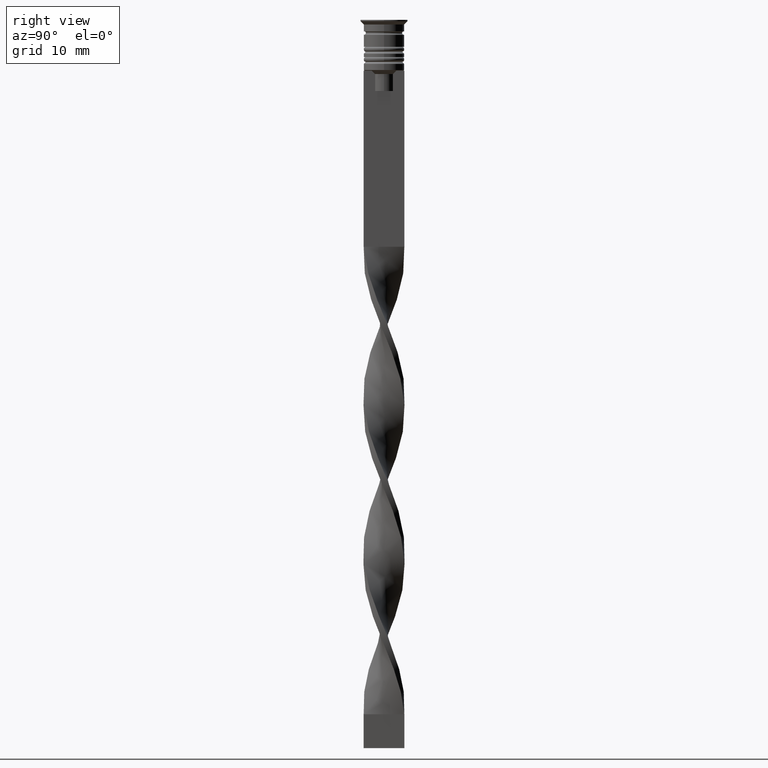
[diagram: clean part render]
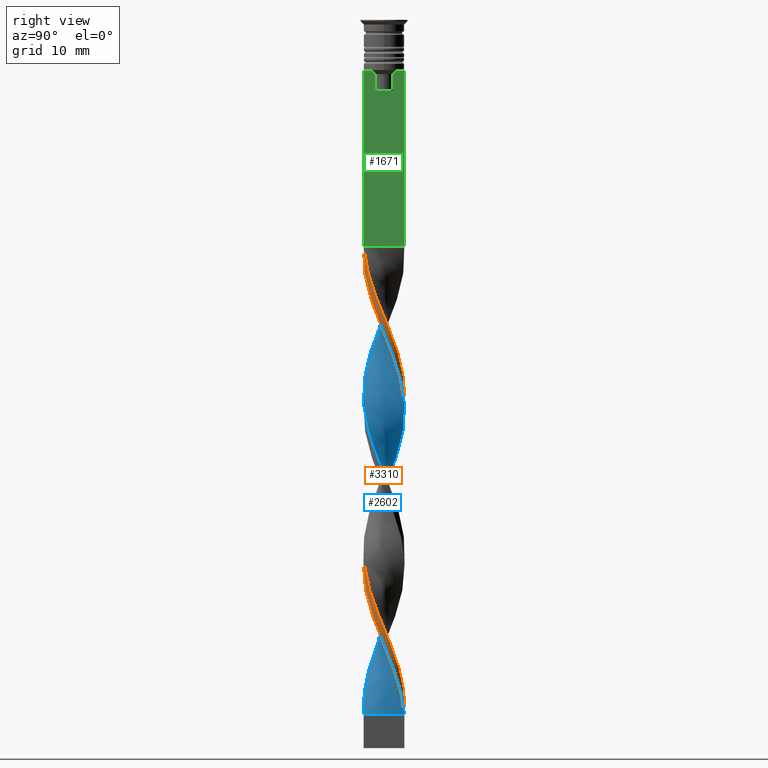
[diagram: same view with three faces highlighted in distinct colors, each labeled with its STEP entity id]
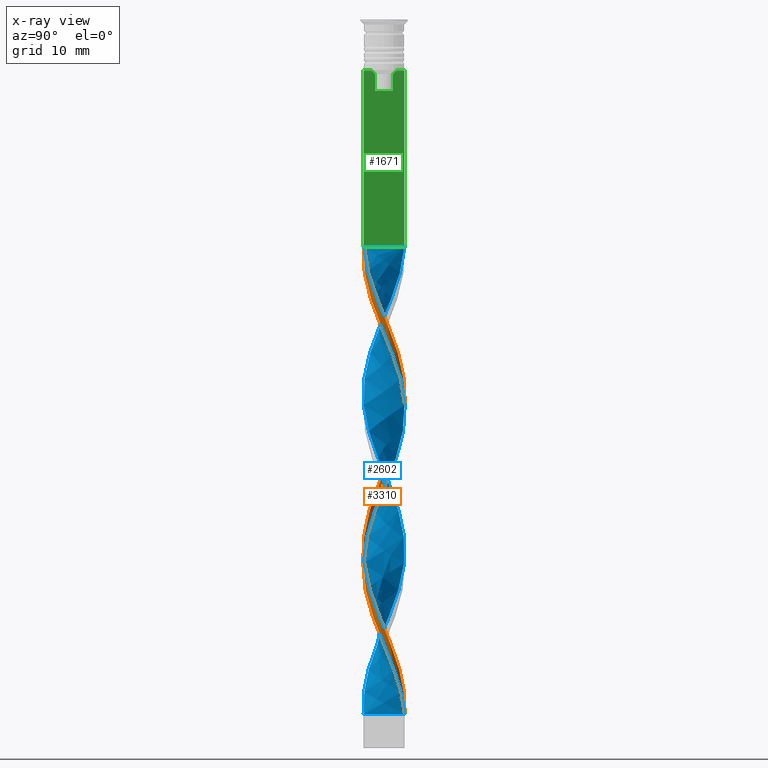
[diagram: x-ray of the same camera — body ghosted, the three highlighted faces saturated]
A machine part, right view with three faces highlighted in distinct colors.
The next image is the same camera in x-ray (body ghosted, the three faces saturated) — at least one of them is partly hidden behind the body in this view.
Their STEP definitions:

[orange] entity #3310 — the highlighted face is a freeform B-spline surface patch.
#11 = CARTESIAN_POINT ( 'NONE',  ( -2.441810035334001761, -1.850388947743476509, -71.53846153846154721 ) ) ;
#12 = CARTESIAN_POINT ( 'NONE',  ( -1.615112600636836371, -2.577093573633699730, -74.19230769230769340 ) ) ;
#25 = EDGE_LOOP ( 'NONE', ( #2811, #176, #940, #2800 ) ) ;
#26 = CARTESIAN_POINT ( 'NONE',  ( 1.928028413296782428, 2.380983398537112716, -96.30769230769232081 ) ) ;
#27 = CARTESIAN_POINT ( 'NONE',  ( 3.038394962421823386, -0.1347443962830584541, -45.88461538461538680 ) ) ;
#29 = CARTESIAN_POINT ( 'NONE',  ( 0.2324760841496471830, -3.032483284421934933, -35.26923076923077360 ) ) ;
#44 = CARTESIAN_POINT ( 'NONE',  ( 3.022034030597048559, 0.5036723384328410935, -91.00000000000001421 ) ) ;
#45 = CARTESIAN_POINT ( 'NONE',  ( 1.542569853484617060, -2.647046231879885081, -82.15384615384617462 ) ) ;
#60 = CARTESIAN_POINT ( 'NONE',  ( 1.203417901575699167, -2.793167620134377582, -81.26923076923077360 ) ) ;
#61 = CARTESIAN_POINT ( 'NONE',  ( -0.4999999999999995559, 3.000000000000000000, -102.5000000000000142 ) ) ;
#74 = CARTESIAN_POINT ( 'NONE',  ( 2.917858282166500228, -0.8579644778149968509, -44.11538461538462030 ) ) ;
#78 = EDGE_CURVE ( 'NONE', #1769, #1609, #207, .T. ) ;
#94 = CARTESIAN_POINT ( 'NONE',  ( -1.302196787976887649, 2.773203748730288964, -60.92307692307691980 ) ) ;
#96 = CARTESIAN_POINT ( 'NONE',  ( 2.131225204431204556, 2.200966749995605820, -52.07692307692308020 ) ) ;
#106 = CARTESIAN_POINT ( 'NONE',  ( 0.4999999999999998890, -3.000000000000000000, -33.50000000000000000 ) ) ;
#112 = CARTESIAN_POINT ( 'NONE',  ( -0.1357340503332185311, -3.060710991611130360, -80.38461538461538680 ) ) ;
#115 = CARTESIAN_POINT ( 'NONE',  ( -0.1357340503332185033, -3.060710991611130360, -80.38461538461538680 ) ) ;
#131 = CARTESIAN_POINT ( 'NONE',  ( -2.363623348807936786, -1.913970915392904315, -74.19230769230769340 ) ) ;
#133 = CARTESIAN_POINT ( 'NONE',  ( -1.542569853484618170, -2.647046231879884193, -76.84615384615386802 ) ) ;
#147 = CARTESIAN_POINT ( 'NONE',  ( 2.909946448908425687, 0.9584295337030729334, -94.53846153846153300 ) ) ;
#163 = CARTESIAN_POINT ( 'NONE',  ( 0.6006862186325125919, -3.004255577232739949, -82.15384615384617462 ) ) ;
#176 = ORIENTED_EDGE ( 'NONE', *, *, #78, .T. ) ;
#178 = CARTESIAN_POINT ( 'NONE',  ( 2.131225204431204556, 2.200966749995605820, -98.07692307692308020 ) ) ;
#207 =( BOUNDED_CURVE ( )  B_SPLINE_CURVE ( 2, ( #1922, #2668, #29, #1338, #2988, #1662, #327, #2407, #341, #1076, #2134, #578, #2700, #307, #1372, #2441, #1643, #1390, #1993, #2813, #1442, #96, #2282, #2764, #1234, #1715, #676, #2749, #2512, #1198, #422, #354, #3042, #1743, #393, #1486, #2260, #910, #644, #1941, #2006, #3304, #1692, #1457, #3006, #2539, #610, #3288, #2562, #133, #3339, #894, #1729, #115, #2797, #163, #946, #1677, #1216, #2296, #1180, #3319, #3071, #874, #2489, #2782, #2228, #2524, #2244, #927, #1419, #3059, #1957, #1164, #373, #405, #1972, #3023, #660 ),
 .UNSPECIFIED., .F., .T. ) 
 B_SPLINE_CURVE_WITH_KNOTS ( ( 3, 2, 2, 2, 2, 2, 2, 2, 2, 2, 2, 2, 2, 2, 2, 2, 2, 2, 2, 2, 2, 2, 2, 2, 2, 2, 2, 2, 2, 2, 2, 2, 2, 2, 2, 2, 2, 2, 2, 3 ),
 ( 0.000000000000000000, 0.01923076923076923184, 0.03846153846153846367, 0.05769230769230768857, 0.07692307692307692735, 0.09615384615384615918, 0.1153846153846153771, 0.1346153846153846090, 0.1538461538461538547, 0.1730769230769230449, 0.1923076923076923184, 0.2115384615384615363, 0.2307692307692307543, 0.2500000000000000000, 0.2692307692307692180, 0.2884615384615384359, 0.3076923076923077094, 0.3269230769230769273, 0.3461538461538460898, 0.3653846153846153633, 0.3846153846153846367, 0.4038461538461539102, 0.4230769230769230727, 0.4423076923076922906, 0.4615384615384615086, 0.4807692307692307820, 0.5000000000000000000, 0.5192307692307692735, 0.5384615384615384359, 0.5576923076923077094, 0.5769230769230768718, 0.5961538461538461453, 0.6153846153846154188, 0.6346153846153845812, 0.6538461538461538547, 0.6730769230769230171, 0.6923076923076921796, 0.7115384615384615641, 0.7307692307692307265, 0.7500000000000000000 ),
 .UNSPECIFIED. ) 
 CURVE ( )  GEOMETRIC_REPRESENTATION_ITEM ( )  RATIONAL_B_SPLINE_CURVE ( ( 1.000000000000000000, 0.9927088740980539727, 1.000000000000000000, 0.9927088740980539727, 1.000000000000000000, 0.9927088740980539727, 1.000000000000000000, 0.9927088740980539727, 1.000000000000000000, 0.9927088740980539727, 1.000000000000000000, 0.9927088740980539727, 1.000000000000000000, 0.9927088740980539727, 1.000000000000000000, 0.9927088740980539727, 1.000000000000000000, 0.9927088740980539727, 1.000000000000000000, 0.9927088740980539727, 1.000000000000000000, 0.9927088740980539727, 1.000000000000000000, 0.9927088740980539727, 1.000000000000000000, 0.9927088740980539727, 1.000000000000000000, 0.9927088740980539727, 1.000000000000000000, 0.9927088740980539727, 1.000000000000000000, 0.9927088740980539727, 1.000000000000000000, 0.9927088740980539727, 1.000000000000000000, 0.9927088740980539727, 1.000000000000000000, 0.9927088740980539727, 1.000000000000000000, 0.9927088740980539727, 1.000000000000000000, 0.9927088740980539727, 1.000000000000000000, 0.9927088740980539727, 1.000000000000000000, 0.9927088740980539727, 1.000000000000000000, 0.9927088740980539727, 1.000000000000000000, 0.9927088740980539727, 1.000000000000000000, 0.9927088740980539727, 1.000000000000000000, 0.9927088740980539727, 1.000000000000000000, 0.9927088740980539727, 1.000000000000000000, 0.9927088740980539727, 1.000000000000000000, 0.9927088740980539727, 1.000000000000000000, 0.9927088740980539727, 1.000000000000000000, 0.9927088740980539727, 1.000000000000000000, 0.9927088740980539727, 1.000000000000000000, 0.9927088740980539727, 1.000000000000000000, 0.9927088740980539727, 1.000000000000000000, 0.9927088740980539727, 1.000000000000000000, 0.9927088740980539727, 1.000000000000000000, 0.9927088740980539727, 1.000000000000000000, 0.9927088740980539727, 1.000000000000000000 ) ) 
 REPRESENTATION_ITEM ( '' )  );
#218 = CARTESIAN_POINT ( 'NONE',  ( 1.836897528957910364, -2.424006490937745451, -37.03846153846154010 ) ) ;
#232 = CARTESIAN_POINT ( 'NONE',  ( 2.909946448908425687, -0.9584295337030735995, -41.46153846153846700 ) ) ;
#246 = VECTOR ( 'NONE', #1366, 1000.000000000000000 ) ;
#247 = CARTESIAN_POINT ( 'NONE',  ( -0.1357340503332169490, 3.060710991611130360, -101.6153846153846274 ) ) ;
#269 = CARTESIAN_POINT ( 'NONE',  ( 3.054755894246598658, -0.2341835458667260728, -89.23076923076924061 ) ) ;
#287 = CARTESIAN_POINT ( 'NONE',  ( 3.038394962421823831, 0.1347443962830572051, -90.11538461538462741 ) ) ;
#289 = CARTESIAN_POINT ( 'NONE',  ( -2.752983971046547129, 1.292702307246639704, -63.57692307692308731 ) ) ;
#304 = CARTESIAN_POINT ( 'NONE',  ( -0.9514415033047030068, -2.888729662981513346, -75.96153846153846700 ) ) ;
#305 = CARTESIAN_POINT ( 'NONE',  ( 2.441810035334000872, 1.850388947743477175, -94.53846153846153300 ) ) ;
#307 = CARTESIAN_POINT ( 'NONE',  ( 3.022034030597048559, -0.5036723384328417596, -45.00000000000000711 ) ) ;
#324 = CARTESIAN_POINT ( 'NONE',  ( 2.752983971046547573, 1.292702307246638815, -49.42307692307693401 ) ) ;
#327 = CARTESIAN_POINT ( 'NONE',  ( 1.615112600636834594, -2.577093573633701062, -38.80769230769230660 ) ) ;
#339 = CARTESIAN_POINT ( 'NONE',  ( -0.1357340503332169768, 3.060710991611130360, -101.6153846153846132 ) ) ;
#341 = CARTESIAN_POINT ( 'NONE',  ( 2.184919224315390984, -2.115686173140296056, -40.57692307692308020 ) ) ;
#349 = EDGE_CURVE ( 'NONE', #486, #1769, #2129, .T. ) ;
#351 = CARTESIAN_POINT ( 'NONE',  ( 1.836897528957911030, 2.424006490937744562, -52.96153846153845990 ) ) ;
#354 = CARTESIAN_POINT ( 'NONE',  ( -1.302196787976887871, 2.773203748730288964, -60.92307692307692690 ) ) ;
#370 = CARTESIAN_POINT ( 'NONE',  ( 3.022034030597048559, 0.5036723384328410935, -91.00000000000001421 ) ) ;
#373 = CARTESIAN_POINT ( 'NONE',  ( 1.836897528957911030, 2.424006490937744562, -98.96153846153848122 ) ) ;
#390 = CARTESIAN_POINT ( 'NONE',  ( 2.441810035334000428, -1.850388947743477841, -87.46153846153849543 ) ) ;
#393 = CARTESIAN_POINT ( 'NONE',  ( -2.184919224315390984, 2.115686173140296056, -63.57692307692308731 ) ) ;
#403 = CARTESIAN_POINT ( 'NONE',  ( -1.542569853484618392, -2.647046231879884193, -76.84615384615386802 ) ) ;
#405 = CARTESIAN_POINT ( 'NONE',  ( 1.542569853484617948, 2.647046231879884193, -99.84615384615386802 ) ) ;
#420 = CARTESIAN_POINT ( 'NONE',  ( 1.302196787976887871, -2.773203748730288520, -83.92307692307691980 ) ) ;
#422 = CARTESIAN_POINT ( 'NONE',  ( -0.9514415033047003423, 2.888729662981513790, -60.03846153846154010 ) ) ;
#431 = CARTESIAN_POINT ( 'NONE',  ( -0.6006862186325142572, -3.004255577232739949, -76.84615384615386802 ) ) ;
#444 = CARTESIAN_POINT ( 'NONE',  ( -2.917858282166500672, -0.8579644778149938533, -68.88461538461538680 ) ) ;
#469 = CARTESIAN_POINT ( 'NONE',  ( 2.131225204431203668, -2.200966749995606264, -37.92307692307692690 ) ) ;
#486 = VERTEX_POINT ( 'NONE', #106 ) ;
#489 = CARTESIAN_POINT ( 'NONE',  ( 1.302196787976888759, 2.773203748730288076, -52.07692307692308020 ) ) ;
#490 = CARTESIAN_POINT ( 'NONE',  ( -2.909946448908424799, 0.9584295337030754869, -64.46153846153845279 ) ) ;
#504 = CARTESIAN_POINT ( 'NONE',  ( 0.8642659496667816077, -2.939289008388869640, -80.38461538461538680 ) ) ;
#505 = CARTESIAN_POINT ( 'NONE',  ( 3.022034030597048559, 0.5036723384328410935, -45.00000000000000711 ) ) ;
#524 = CARTESIAN_POINT ( 'NONE',  ( 2.184919224315391872, 2.115686173140295168, -49.42307692307693401 ) ) ;
#545 = CARTESIAN_POINT ( 'NONE',  ( 1.302196787976888759, 2.773203748730288076, -52.07692307692308020 ) ) ;
#558 = CARTESIAN_POINT ( 'NONE',  ( 1.302196787976887871, -2.773203748730288520, -37.92307692307692690 ) ) ;
#575 = CARTESIAN_POINT ( 'NONE',  ( 2.982351171577512172, -0.5963065397849001137, -88.34615384615385381 ) ) ;
#576 = CARTESIAN_POINT ( 'NONE',  ( 2.596021493184668572, -1.626975080790205697, -85.69230769230770761 ) ) ;
#578 = CARTESIAN_POINT ( 'NONE',  ( 2.813682533735953228, -1.212256617197151165, -43.23076923076923350 ) ) ;
#593 = CARTESIAN_POINT ( 'NONE',  ( 2.363623348807935898, -1.913970915392906091, -84.80769230769232081 ) ) ;
#608 = CARTESIAN_POINT ( 'NONE',  ( 0.4999999999999998890, -3.000000000000000000, -79.50000000000001421 ) ) ;
#610 = CARTESIAN_POINT ( 'NONE',  ( -2.363623348807936786, -1.913970915392904315, -74.19230769230769340 ) ) ;
#624 = CARTESIAN_POINT ( 'NONE',  ( 2.131225204431203668, -2.200966749995606264, -83.92307692307691980 ) ) ;
#641 = CARTESIAN_POINT ( 'NONE',  ( -2.131225204431204556, -2.200966749995605820, -75.07692307692308020 ) ) ;
#644 = CARTESIAN_POINT ( 'NONE',  ( -2.917858282166500228, 0.8579644778149978501, -67.11538461538461320 ) ) ;
#658 = CARTESIAN_POINT ( 'NONE',  ( -2.441810035333999540, 1.850388947743479173, -64.46153846153845279 ) ) ;
#660 = CARTESIAN_POINT ( 'NONE',  ( 0.5000000000000004441, 3.000000000000000000, -102.5000000000000142 ) ) ;
#676 = CARTESIAN_POINT ( 'NONE',  ( 0.5000000000000004441, 3.000000000000000000, -56.50000000000000711 ) ) ;
#692 = CARTESIAN_POINT ( 'NONE',  ( -3.022034030597048559, 0.5036723384328420927, -68.00000000000000000 ) ) ;
#697 = CARTESIAN_POINT ( 'NONE',  ( 3.038394962421823831, 0.1347443962830572051, -44.11538461538462030 ) ) ;
#711 = CARTESIAN_POINT ( 'NONE',  ( 2.627746284534976606, -1.531322782470315058, -88.34615384615385381 ) ) ;
#715 = CARTESIAN_POINT ( 'NONE',  ( -1.542569853484615727, 2.647046231879885525, -59.15384615384616041 ) ) ;
#727 = CARTESIAN_POINT ( 'NONE',  ( -1.836897528957910364, 2.424006490937745451, -60.03846153846154010 ) ) ;
#743 = CARTESIAN_POINT ( 'NONE',  ( -2.909946448908425243, 0.9584295337030753759, -64.46153846153845279 ) ) ;
#744 = CARTESIAN_POINT ( 'NONE',  ( 2.752983971046547129, -1.292702307246639704, -40.57692307692308020 ) ) ;
#762 = CARTESIAN_POINT ( 'NONE',  ( -1.302196787976888759, -2.773203748730288076, -75.07692307692308020 ) ) ;
#781 = CARTESIAN_POINT ( 'NONE',  ( 1.836897528957910364, -2.424006490937745451, -83.03846153846154721 ) ) ;
#782 = CARTESIAN_POINT ( 'NONE',  ( -2.813682533735954117, -1.212256617197149833, -69.76923076923077360 ) ) ;
#800 = CARTESIAN_POINT ( 'NONE',  ( -1.836897528957910364, 2.424006490937745451, -60.03846153846154010 ) ) ;
#825 = CARTESIAN_POINT ( 'NONE',  ( 2.627746284534977050, 1.531322782470313726, -93.65384615384617462 ) ) ;
#839 = CARTESIAN_POINT ( 'NONE',  ( 2.813682533735953228, 1.212256617197150721, -92.76923076923077360 ) ) ;
#840 = CARTESIAN_POINT ( 'NONE',  ( 2.596021493184669016, 1.626975080790204142, -50.30769230769232081 ) ) ;
#854 = CARTESIAN_POINT ( 'NONE',  ( 2.917858282166500672, 0.8579644778149956297, -91.88461538461540101 ) ) ;
#870 = CARTESIAN_POINT ( 'NONE',  ( 0.8642659496667817187, -2.939289008388869640, -80.38461538461538680 ) ) ;
#874 = CARTESIAN_POINT ( 'NONE',  ( 2.813682533735953228, -1.212256617197151165, -89.23076923076924061 ) ) ;
#891 = CARTESIAN_POINT ( 'NONE',  ( 2.184919224315391872, 2.115686173140295168, -95.42307692307693401 ) ) ;
#894 = CARTESIAN_POINT ( 'NONE',  ( -0.8642659496667834951, -2.939289008388869195, -78.61538461538461320 ) ) ;
#910 = CARTESIAN_POINT ( 'NONE',  ( -2.813682533735953228, 1.212256617197151165, -66.23076923076922640 ) ) ;
#925 = CARTESIAN_POINT ( 'NONE',  ( -3.038394962421823386, 0.1347443962830601472, -68.88461538461538680 ) ) ;
#927 = CARTESIAN_POINT ( 'NONE',  ( 2.909946448908426131, 0.9584295337030729334, -94.53846153846154721 ) ) ;
#940 = ORIENTED_EDGE ( 'NONE', *, *, #1717, .F. ) ;
#943 = CARTESIAN_POINT ( 'NONE',  ( -0.5000000000000001110, -3.000000000000000000, -79.50000000000001421 ) ) ;
#946 = CARTESIAN_POINT ( 'NONE',  ( 0.9514415033047003423, -2.888729662981513790, -83.03846153846154721 ) ) ;
#952 = CARTESIAN_POINT ( 'NONE',  ( 0.9514415033047012304, 2.888729662981513346, -52.96153846153845990 ) ) ;
#963 = CARTESIAN_POINT ( 'NONE',  ( -0.4999999999999995559, 3.000000000000000000, -56.50000000000000711 ) ) ;
#980 = CARTESIAN_POINT ( 'NONE',  ( 2.813682533735953228, -1.212256617197151165, -89.23076923076922640 ) ) ;
#1003 = CARTESIAN_POINT ( 'NONE',  ( 2.982351171577512172, -0.5963065397849001137, -42.34615384615385381 ) ) ;
#1019 = CARTESIAN_POINT ( 'NONE',  ( 2.813682533735953228, 1.212256617197150721, -46.76923076923077360 ) ) ;
#1020 = CARTESIAN_POINT ( 'NONE',  ( 0.8642659496667817187, -2.939289008388869640, -34.38461538461538680 ) ) ;
#1039 = CARTESIAN_POINT ( 'NONE',  ( -2.752983971046547129, 1.292702307246639704, -63.57692307692308731 ) ) ;
#1058 = CARTESIAN_POINT ( 'NONE',  ( 1.615112600636835927, 2.577093573633700174, -97.19230769230770761 ) ) ;
#1060 = CARTESIAN_POINT ( 'NONE',  ( -1.203417901575698279, 2.793167620134377582, -58.26923076923077360 ) ) ;
#1076 = CARTESIAN_POINT ( 'NONE',  ( 2.441810035334000428, -1.850388947743478063, -41.46153846153846700 ) ) ;
#1093 = CARTESIAN_POINT ( 'NONE',  ( 1.542569853484617060, -2.647046231879885081, -82.15384615384617462 ) ) ;
#1094 = CARTESIAN_POINT ( 'NONE',  ( 2.909946448908425243, -0.9584295337030735995, -87.46153846153849543 ) ) ;
#1110 = CARTESIAN_POINT ( 'NONE',  ( 2.752983971046547129, -1.292702307246639704, -86.57692307692308020 ) ) ;
#1111 = CARTESIAN_POINT ( 'NONE',  ( 2.752983971046547129, -1.292702307246639704, -86.57692307692308020 ) ) ;
#1127 = CARTESIAN_POINT ( 'NONE',  ( 2.909946448908425687, 0.9584295337030729334, -48.53846153846154010 ) ) ;
#1139 = CARTESIAN_POINT ( 'NONE',  ( 3.022034030597048559, -0.5036723384328417596, -45.00000000000000711 ) ) ;
#1142 = EDGE_CURVE ( 'NONE', #486, #3055, #1610, .T. ) ;
#1148 =( BOUNDED_SURFACE ( )  B_SPLINE_SURFACE ( 1, 2, ( 
 ( #1301, #1020, #3138, #2366, #2078, #1242, #1494, #3421, #744, #1586, #2898, #2014, #3404, #505, #2665, #2385, #1753, #1866, #524, #1810, #2682, #545, #952, #3160, #1317, #1829, #3443, #1568, #1060, #2115, #800, #2132, #3080, #2882, #289, #490, #1608, #1552, #3176, #1352, #2916, #782, #2632, #1845, #1335, #2404, #12, #2423, #2821, #431, #1388, #2439, #608, #870, #3249, #45, #1660, #624, #593, #576, #1111, #1094, #2697, #1417, #1905, #370, #854, #3286, #825, #305, #891, #2225, #1920, #2458, #2732, #2485, #1689, #339, #61 ),
 ( #1954, #1369, #2986, #3003, #2956, #558, #2762, #1402, #3236, #2471, #3019, #1438, #74, #1139, #27, #2174, #2972, #1127, #324, #840, #2189, #1641, #351, #2151, #1625, #2205, #2715, #3266, #1938, #1675, #2747, #94, #1162, #3217, #1888, #658, #2779, #2578, #1455, #692, #925, #2036, #2795, #2522, #1196, #1727, #131, #641, #3039, #403, #2258, #3085, #943, #112, #1710, #2004, #1762, #420, #2241, #3367, #2018, #390, #711, #980, #2508, #1468, #2810, #2536, #1741, #147, #2279, #1214, #1249, #178, #1177, #1990, #1776, #3056, #3108 ) ),
 .UNSPECIFIED., .F., .F., .F. ) 
 B_SPLINE_SURFACE_WITH_KNOTS ( ( 2, 2 ),
 ( 3, 2, 2, 2, 2, 2, 2, 2, 2, 2, 2, 2, 2, 2, 2, 2, 2, 2, 2, 2, 2, 2, 2, 2, 2, 2, 2, 2, 2, 2, 2, 2, 2, 2, 2, 2, 2, 2, 2, 3 ),
 ( 0.000000000000000000, 1.000000000000000000 ),
 ( 0.000000000000000000, 0.01923076923076923184, 0.03846153846153846367, 0.05769230769230769551, 0.07692307692307692735, 0.09615384615384615918, 0.1153846153846153910, 0.1346153846153846090, 0.1538461538461538547, 0.1730769230769230727, 0.1923076923076923184, 0.2115384615384615363, 0.2307692307692307820, 0.2500000000000000000, 0.2692307692307692180, 0.2884615384615384359, 0.3076923076923077094, 0.3269230769230769273, 0.3461538461538461453, 0.3653846153846153633, 0.3846153846153846367, 0.4038461538461538547, 0.4230769230769230727, 0.4423076923076922906, 0.4615384615384615641, 0.4807692307692307820, 0.5000000000000000000, 0.5192307692307692735, 0.5384615384615384359, 0.5576923076923077094, 0.5769230769230768718, 0.5961538461538461453, 0.6153846153846154188, 0.6346153846153845812, 0.6538461538461538547, 0.6730769230769231282, 0.6923076923076922906, 0.7115384615384615641, 0.7307692307692307265, 0.7500000000000000000 ),
 .UNSPECIFIED. ) 
 GEOMETRIC_REPRESENTATION_ITEM ( )  RATIONAL_B_SPLINE_SURFACE ( (
 ( 1.000000000000000000, 0.9927088740980539727, 1.000000000000000000, 0.9927088740980539727, 1.000000000000000000, 0.9927088740980539727, 1.000000000000000000, 0.9927088740980539727, 1.000000000000000000, 0.9927088740980539727, 1.000000000000000000, 0.9927088740980539727, 1.000000000000000000, 0.9927088740980539727, 1.000000000000000000, 0.9927088740980539727, 1.000000000000000000, 0.9927088740980539727, 1.000000000000000000, 0.9927088740980539727, 1.000000000000000000, 0.9927088740980539727, 1.000000000000000000, 0.9927088740980539727, 1.000000000000000000, 0.9927088740980539727, 1.000000000000000000, 0.9927088740980539727, 1.000000000000000000, 0.9927088740980539727, 1.000000000000000000, 0.9927088740980539727, 1.000000000000000000, 0.9927088740980539727, 1.000000000000000000, 0.9927088740980539727, 1.000000000000000000, 0.9927088740980539727, 1.000000000000000000, 0.9927088740980539727, 1.000000000000000000, 0.9927088740980539727, 1.000000000000000000, 0.9927088740980539727, 1.000000000000000000, 0.9927088740980539727, 1.000000000000000000, 0.9927088740980539727, 1.000000000000000000, 0.9927088740980539727, 1.000000000000000000, 0.9927088740980539727, 1.000000000000000000, 0.9927088740980539727, 1.000000000000000000, 0.9927088740980539727, 1.000000000000000000, 0.9927088740980539727, 1.000000000000000000, 0.9927088740980539727, 1.000000000000000000, 0.9927088740980539727, 1.000000000000000000, 0.9927088740980539727, 1.000000000000000000, 0.9927088740980539727, 1.000000000000000000, 0.9927088740980539727, 1.000000000000000000, 0.9927088740980539727, 1.000000000000000000, 0.9927088740980539727, 1.000000000000000000, 0.9927088740980539727, 1.000000000000000000, 0.9927088740980539727, 1.000000000000000000, 0.9927088740980539727, 1.000000000000000000),
 ( 1.000000000000000000, 0.9927088740980539727, 1.000000000000000000, 0.9927088740980539727, 1.000000000000000000, 0.9927088740980539727, 1.000000000000000000, 0.9927088740980539727, 1.000000000000000000, 0.9927088740980539727, 1.000000000000000000, 0.9927088740980539727, 1.000000000000000000, 0.9927088740980539727, 1.000000000000000000, 0.9927088740980539727, 1.000000000000000000, 0.9927088740980539727, 1.000000000000000000, 0.9927088740980539727, 1.000000000000000000, 0.9927088740980539727, 1.000000000000000000, 0.9927088740980539727, 1.000000000000000000, 0.9927088740980539727, 1.000000000000000000, 0.9927088740980539727, 1.000000000000000000, 0.9927088740980539727, 1.000000000000000000, 0.9927088740980539727, 1.000000000000000000, 0.9927088740980539727, 1.000000000000000000, 0.9927088740980539727, 1.000000000000000000, 0.9927088740980539727, 1.000000000000000000, 0.9927088740980539727, 1.000000000000000000, 0.9927088740980539727, 1.000000000000000000, 0.9927088740980539727, 1.000000000000000000, 0.9927088740980539727, 1.000000000000000000, 0.9927088740980539727, 1.000000000000000000, 0.9927088740980539727, 1.000000000000000000, 0.9927088740980539727, 1.000000000000000000, 0.9927088740980539727, 1.000000000000000000, 0.9927088740980539727, 1.000000000000000000, 0.9927088740980539727, 1.000000000000000000, 0.9927088740980539727, 1.000000000000000000, 0.9927088740980539727, 1.000000000000000000, 0.9927088740980539727, 1.000000000000000000, 0.9927088740980539727, 1.000000000000000000, 0.9927088740980539727, 1.000000000000000000, 0.9927088740980539727, 1.000000000000000000, 0.9927088740980539727, 1.000000000000000000, 0.9927088740980539727, 1.000000000000000000, 0.9927088740980539727, 1.000000000000000000, 0.9927088740980539727, 1.000000000000000000) ) ) 
 REPRESENTATION_ITEM ( '' )  SURFACE ( )  );
#1162 = CARTESIAN_POINT ( 'NONE',  ( -1.615112600636834150, 2.577093573633701062, -61.80769230769231370 ) ) ;
#1164 = CARTESIAN_POINT ( 'NONE',  ( 2.131225204431204556, 2.200966749995605820, -98.07692307692309441 ) ) ;
#1177 = CARTESIAN_POINT ( 'NONE',  ( 1.836897528957911030, 2.424006490937744562, -98.96153846153848122 ) ) ;
#1180 = CARTESIAN_POINT ( 'NONE',  ( 2.184919224315390984, -2.115686173140296056, -86.57692307692308020 ) ) ;
#1196 = CARTESIAN_POINT ( 'NONE',  ( -2.752983971046547573, -1.292702307246638149, -72.42307692307691980 ) ) ;
#1198 = CARTESIAN_POINT ( 'NONE',  ( -0.6006862186325113706, 3.004255577232740393, -59.15384615384616041 ) ) ;
#1214 = CARTESIAN_POINT ( 'NONE',  ( 2.596021493184669016, 1.626975080790204142, -96.30769230769232081 ) ) ;
#1216 = CARTESIAN_POINT ( 'NONE',  ( 1.615112600636834594, -2.577093573633701062, -84.80769230769232081 ) ) ;
#1234 = CARTESIAN_POINT ( 'NONE',  ( 1.203417901575700499, 2.793167620134376694, -54.73076923076923350 ) ) ;
#1238 = CARTESIAN_POINT ( 'NONE',  ( 3.022034030597048559, 0.5036723384328410935, -45.00000000000000711 ) ) ;
#1242 = CARTESIAN_POINT ( 'NONE',  ( 2.131225204431203668, -2.200966749995606264, -37.92307692307692690 ) ) ;
#1249 = CARTESIAN_POINT ( 'NONE',  ( 2.363623348807936786, 1.913970915392904759, -97.19230769230770761 ) ) ;
#1301 = CARTESIAN_POINT ( 'NONE',  ( 0.4999999999999998890, -3.000000000000000000, -33.50000000000000000 ) ) ;
#1317 = CARTESIAN_POINT ( 'NONE',  ( 0.2324760841496485153, 3.032483284421934489, -54.73076923076923350 ) ) ;
#1334 = CARTESIAN_POINT ( 'NONE',  ( 2.917858282166500672, 0.8579644778149956297, -91.88461538461540101 ) ) ;
#1335 = CARTESIAN_POINT ( 'NONE',  ( -2.184919224315392317, -2.115686173140294724, -72.42307692307691980 ) ) ;
#1338 = CARTESIAN_POINT ( 'NONE',  ( 0.6006862186325125919, -3.004255577232739949, -36.15384615384615330 ) ) ;
#1352 = CARTESIAN_POINT ( 'NONE',  ( -3.022034030597048559, -0.5036723384328407604, -68.00000000000000000 ) ) ;
#1366 = DIRECTION ( 'NONE',  ( -1.000000000000000000, 0.000000000000000000, 0.000000000000000000 ) ) ;
#1368 = CARTESIAN_POINT ( 'NONE',  ( -2.184919224315392317, -2.115686173140294724, -72.42307692307691980 ) ) ;
#1369 = CARTESIAN_POINT ( 'NONE',  ( -0.1357340503332185311, -3.060710991611130360, -34.38461538461538680 ) ) ;
#1372 = CARTESIAN_POINT ( 'NONE',  ( 3.038394962421823386, -0.1347443962830584541, -45.88461538461538680 ) ) ;
#1388 = CARTESIAN_POINT ( 'NONE',  ( -0.2324760841496502084, -3.032483284421934489, -77.73076923076924061 ) ) ;
#1390 = CARTESIAN_POINT ( 'NONE',  ( 2.909946448908426131, 0.9584295337030729334, -48.53846153846154721 ) ) ;
#1402 = CARTESIAN_POINT ( 'NONE',  ( 1.928028413296781762, -2.380983398537113604, -39.69230769230769340 ) ) ;
#1417 = CARTESIAN_POINT ( 'NONE',  ( 3.054755894246598658, -0.2341835458667260450, -89.23076923076922640 ) ) ;
#1419 = CARTESIAN_POINT ( 'NONE',  ( 2.752983971046547573, 1.292702307246638815, -95.42307692307693401 ) ) ;
#1438 = CARTESIAN_POINT ( 'NONE',  ( 2.813682533735953228, -1.212256617197151165, -43.23076923076922640 ) ) ;
#1442 = CARTESIAN_POINT ( 'NONE',  ( 2.363623348807936786, 1.913970915392904759, -51.19230769230769340 ) ) ;
#1455 = CARTESIAN_POINT ( 'NONE',  ( -2.917858282166500228, 0.8579644778149978501, -67.11538461538461320 ) ) ;
#1457 = CARTESIAN_POINT ( 'NONE',  ( -2.909946448908426575, -0.9584295337030714901, -71.53846153846154721 ) ) ;
#1468 = CARTESIAN_POINT ( 'NONE',  ( 3.022034030597048559, -0.5036723384328417596, -91.00000000000001421 ) ) ;
#1486 = CARTESIAN_POINT ( 'NONE',  ( -2.441810035333999540, 1.850388947743479395, -64.46153846153845279 ) ) ;
#1494 = CARTESIAN_POINT ( 'NONE',  ( 2.363623348807935898, -1.913970915392906091, -38.80769230769230660 ) ) ;
#1506 = CARTESIAN_POINT ( 'NONE',  ( 2.627746284534977050, 1.531322782470313726, -47.65384615384616041 ) ) ;
#1517 = CARTESIAN_POINT ( 'NONE',  ( 2.363623348807935898, -1.913970915392906091, -38.80769230769230660 ) ) ;
#1533 = CARTESIAN_POINT ( 'NONE',  ( -3.022034030597048559, -0.5036723384328408715, -68.00000000000000000 ) ) ;
#1552 = CARTESIAN_POINT ( 'NONE',  ( -3.054755894246598658, 0.2341835458667258230, -66.23076923076922640 ) ) ;
#1567 = CARTESIAN_POINT ( 'NONE',  ( 2.441810035334000872, 1.850388947743477397, -94.53846153846154721 ) ) ;
#1568 = CARTESIAN_POINT ( 'NONE',  ( -0.8642659496667810526, 2.939289008388869640, -57.38461538461538680 ) ) ;
#1586 = CARTESIAN_POINT ( 'NONE',  ( 2.909946448908425243, -0.9584295337030735995, -41.46153846153846700 ) ) ;
#1598 = CARTESIAN_POINT ( 'NONE',  ( 0.5000000000000004441, 3.000000000000000000, -102.5000000000000142 ) ) ;
#1607 = CARTESIAN_POINT ( 'NONE',  ( 2.363623348807935898, -1.913970915392906091, -84.80769230769232081 ) ) ;
#1608 = CARTESIAN_POINT ( 'NONE',  ( -2.982351171577512172, 0.5963065397849003357, -65.34615384615385381 ) ) ;
#1609 = VERTEX_POINT ( 'NONE', #2584 ) ;
#1610 =( BOUNDED_CURVE ( )  B_SPLINE_CURVE ( 2, ( #2565, #1808, #3111, #2022, #218, #469, #1517, #3091, #2333, #232, #1003, #2317, #697, #1238, #2299, #1019, #1506, #3420, #2596, #2881, #2058, #489, #2616, #3355, #2365, #2631, #963, #3372, #3123, #715, #727, #1779, #1789, #2864, #1039, #743, #1767, #2583, #2836, #1533, #444, #2349, #3403, #11, #1368, #1828, #3442, #762, #304, #2438, #2955, #2897, #2173, #504, #60, #1093, #781, #3235, #1607, #2664, #1110, #3216, #575, #269, #287, #44, #1334, #839, #2422, #1567, #1904, #26, #1058, #2971, #2714, #2645, #2150, #247, #1640 ),
 .UNSPECIFIED., .F., .T. ) 
 B_SPLINE_CURVE_WITH_KNOTS ( ( 3, 2, 2, 2, 2, 2, 2, 2, 2, 2, 2, 2, 2, 2, 2, 2, 2, 2, 2, 2, 2, 2, 2, 2, 2, 2, 2, 2, 2, 2, 2, 2, 2, 2, 2, 2, 2, 2, 2, 3 ),
 ( 0.000000000000000000, 0.01923076923076923184, 0.03846153846153846367, 0.05769230769230768857, 0.07692307692307692735, 0.09615384615384615918, 0.1153846153846153771, 0.1346153846153846090, 0.1538461538461538547, 0.1730769230769230449, 0.1923076923076923184, 0.2115384615384615363, 0.2307692307692307543, 0.2500000000000000000, 0.2692307692307692180, 0.2884615384615384359, 0.3076923076923077094, 0.3269230769230769273, 0.3461538461538460898, 0.3653846153846153633, 0.3846153846153846367, 0.4038461538461539102, 0.4230769230769230727, 0.4423076923076922906, 0.4615384615384615086, 0.4807692307692307820, 0.5000000000000000000, 0.5192307692307692735, 0.5384615384615384359, 0.5576923076923077094, 0.5769230769230768718, 0.5961538461538461453, 0.6153846153846154188, 0.6346153846153845812, 0.6538461538461538547, 0.6730769230769230171, 0.6923076923076921796, 0.7115384615384615641, 0.7307692307692307265, 0.7500000000000000000 ),
 .UNSPECIFIED. ) 
 CURVE ( )  GEOMETRIC_REPRESENTATION_ITEM ( )  RATIONAL_B_SPLINE_CURVE ( ( 1.000000000000000000, 0.9927088740980539727, 1.000000000000000000, 0.9927088740980539727, 1.000000000000000000, 0.9927088740980539727, 1.000000000000000000, 0.9927088740980539727, 1.000000000000000000, 0.9927088740980539727, 1.000000000000000000, 0.9927088740980539727, 1.000000000000000000, 0.9927088740980539727, 1.000000000000000000, 0.9927088740980539727, 1.000000000000000000, 0.9927088740980539727, 1.000000000000000000, 0.9927088740980539727, 1.000000000000000000, 0.9927088740980539727, 1.000000000000000000, 0.9927088740980539727, 1.000000000000000000, 0.9927088740980539727, 1.000000000000000000, 0.9927088740980539727, 1.000000000000000000, 0.9927088740980539727, 1.000000000000000000, 0.9927088740980539727, 1.000000000000000000, 0.9927088740980539727, 1.000000000000000000, 0.9927088740980539727, 1.000000000000000000, 0.9927088740980539727, 1.000000000000000000, 0.9927088740980539727, 1.000000000000000000, 0.9927088740980539727, 1.000000000000000000, 0.9927088740980539727, 1.000000000000000000, 0.9927088740980539727, 1.000000000000000000, 0.9927088740980539727, 1.000000000000000000, 0.9927088740980539727, 1.000000000000000000, 0.9927088740980539727, 1.000000000000000000, 0.9927088740980539727, 1.000000000000000000, 0.9927088740980539727, 1.000000000000000000, 0.9927088740980539727, 1.000000000000000000, 0.9927088740980539727, 1.000000000000000000, 0.9927088740980539727, 1.000000000000000000, 0.9927088740980539727, 1.000000000000000000, 0.9927088740980539727, 1.000000000000000000, 0.9927088740980539727, 1.000000000000000000, 0.9927088740980539727, 1.000000000000000000, 0.9927088740980539727, 1.000000000000000000, 0.9927088740980539727, 1.000000000000000000, 0.9927088740980539727, 1.000000000000000000, 0.9927088740980539727, 1.000000000000000000 ) ) 
 REPRESENTATION_ITEM ( '' )  );
#1625 = CARTESIAN_POINT ( 'NONE',  ( 1.203417901575700499, 2.793167620134376694, -54.73076923076923350 ) ) ;
#1640 = CARTESIAN_POINT ( 'NONE',  ( -0.4999999999999995559, 3.000000000000000000, -102.5000000000000142 ) ) ;
#1641 = CARTESIAN_POINT ( 'NONE',  ( 2.131225204431204556, 2.200966749995605820, -52.07692307692308020 ) ) ;
#1643 = CARTESIAN_POINT ( 'NONE',  ( 2.982351171577512616, 0.5963065397848988924, -47.65384615384616041 ) ) ;
#1660 = CARTESIAN_POINT ( 'NONE',  ( 1.836897528957910364, -2.424006490937745451, -83.03846153846154721 ) ) ;
#1662 = CARTESIAN_POINT ( 'NONE',  ( 1.302196787976888093, -2.773203748730288520, -37.92307692307692690 ) ) ;
#1675 = CARTESIAN_POINT ( 'NONE',  ( -0.6006862186325113706, 3.004255577232740393, -59.15384615384616041 ) ) ;
#1677 = CARTESIAN_POINT ( 'NONE',  ( 1.302196787976888093, -2.773203748730288520, -83.92307692307693401 ) ) ;
#1689 = CARTESIAN_POINT ( 'NONE',  ( 0.2324760841496485153, 3.032483284421934489, -100.7307692307692406 ) ) ;
#1692 = CARTESIAN_POINT ( 'NONE',  ( -2.982351171577512616, -0.5963065397848993365, -70.65384615384616041 ) ) ;
#1710 = CARTESIAN_POINT ( 'NONE',  ( 0.2324760841496471830, -3.032483284421934933, -81.26923076923077360 ) ) ;
#1715 = CARTESIAN_POINT ( 'NONE',  ( 0.8642659496667830510, 2.939289008388869640, -55.61538461538462741 ) ) ;
#1717 = EDGE_CURVE ( 'NONE', #3055, #1609, #2288, .T. ) ;
#1727 = CARTESIAN_POINT ( 'NONE',  ( -2.596021493184669904, -1.626975080790202810, -73.30769230769232081 ) ) ;
#1729 = CARTESIAN_POINT ( 'NONE',  ( -0.5000000000000001110, -3.000000000000000000, -79.50000000000001421 ) ) ;
#1741 = CARTESIAN_POINT ( 'NONE',  ( 2.982351171577512616, 0.5963065397848988924, -93.65384615384617462 ) ) ;
#1743 = CARTESIAN_POINT ( 'NONE',  ( -1.928028413296780652, 2.380983398537114493, -62.69230769230770051 ) ) ;
#1753 = CARTESIAN_POINT ( 'NONE',  ( 2.627746284534977050, 1.531322782470313726, -47.65384615384616041 ) ) ;
#1762 = CARTESIAN_POINT ( 'NONE',  ( 0.9514415033047003423, -2.888729662981513790, -83.03846153846154721 ) ) ;
#1767 = CARTESIAN_POINT ( 'NONE',  ( -2.982351171577512172, 0.5963065397849003357, -65.34615384615385381 ) ) ;
#1769 = VERTEX_POINT ( 'NONE', #2672 ) ;
#1776 = CARTESIAN_POINT ( 'NONE',  ( 1.203417901575700499, 2.793167620134376694, -100.7307692307692406 ) ) ;
#1779 = CARTESIAN_POINT ( 'NONE',  ( -2.131225204431203668, 2.200966749995606708, -60.92307692307692690 ) ) ;
#1789 = CARTESIAN_POINT ( 'NONE',  ( -2.363623348807935898, 1.913970915392906536, -61.80769230769231370 ) ) ;
#1808 = CARTESIAN_POINT ( 'NONE',  ( 0.8642659496667816077, -2.939289008388869640, -34.38461538461538680 ) ) ;
#1810 = CARTESIAN_POINT ( 'NONE',  ( 1.928028413296782428, 2.380983398537112716, -50.30769230769232081 ) ) ;
#1828 = CARTESIAN_POINT ( 'NONE',  ( -1.928028413296783983, -2.380983398537111828, -73.30769230769232081 ) ) ;
#1829 = CARTESIAN_POINT ( 'NONE',  ( -0.1357340503332169768, 3.060710991611130360, -55.61538461538462741 ) ) ;
#1845 = CARTESIAN_POINT ( 'NONE',  ( -2.441810035334001761, -1.850388947743476509, -71.53846153846154721 ) ) ;
#1866 = CARTESIAN_POINT ( 'NONE',  ( 2.441810035334000872, 1.850388947743477175, -48.53846153846154010 ) ) ;
#1879 = CARTESIAN_POINT ( 'NONE',  ( 0.1666666666666671293, 3.000000000000000000, -102.5000000000000142 ) ) ;
#1888 = CARTESIAN_POINT ( 'NONE',  ( -2.184919224315390984, 2.115686173140296056, -63.57692307692308731 ) ) ;
#1904 = CARTESIAN_POINT ( 'NONE',  ( 2.184919224315391872, 2.115686173140295168, -95.42307692307693401 ) ) ;
#1905 = CARTESIAN_POINT ( 'NONE',  ( 3.038394962421823831, 0.1347443962830572051, -90.11538461538462741 ) ) ;
#1920 = CARTESIAN_POINT ( 'NONE',  ( 1.615112600636835927, 2.577093573633700174, -97.19230769230770761 ) ) ;
#1922 = CARTESIAN_POINT ( 'NONE',  ( -0.5000000000000001110, -3.000000000000000000, -33.50000000000000000 ) ) ;
#1938 = CARTESIAN_POINT ( 'NONE',  ( -0.2324760841496461561, 3.032483284421934933, -58.26923076923077360 ) ) ;
#1941 = CARTESIAN_POINT ( 'NONE',  ( -3.022034030597048559, 0.5036723384328420927, -68.00000000000000000 ) ) ;
#1954 = CARTESIAN_POINT ( 'NONE',  ( -0.5000000000000001110, -3.000000000000000000, -33.50000000000000000 ) ) ;
#1957 = CARTESIAN_POINT ( 'NONE',  ( 2.363623348807936786, 1.913970915392904759, -97.19230769230770761 ) ) ;
#1972 = CARTESIAN_POINT ( 'NONE',  ( 1.203417901575700499, 2.793167620134376694, -100.7307692307692406 ) ) ;
#1990 = CARTESIAN_POINT ( 'NONE',  ( 1.542569853484618170, 2.647046231879884193, -99.84615384615385381 ) ) ;
#1993 = CARTESIAN_POINT ( 'NONE',  ( 2.752983971046547573, 1.292702307246638815, -49.42307692307693401 ) ) ;
#2004 = CARTESIAN_POINT ( 'NONE',  ( 0.6006862186325125919, -3.004255577232739949, -82.15384615384617462 ) ) ;
#2006 = CARTESIAN_POINT ( 'NONE',  ( -3.038394962421823386, 0.1347443962830601472, -68.88461538461538680 ) ) ;
#2014 = CARTESIAN_POINT ( 'NONE',  ( 3.054755894246598658, -0.2341835458667260450, -43.23076923076922640 ) ) ;
#2018 = CARTESIAN_POINT ( 'NONE',  ( 2.184919224315390984, -2.115686173140296056, -86.57692307692308020 ) ) ;
#2022 = CARTESIAN_POINT ( 'NONE',  ( 1.542569853484617060, -2.647046231879885081, -36.15384615384615330 ) ) ;
#2036 = CARTESIAN_POINT ( 'NONE',  ( -3.054755894246599102, -0.2341835458667243519, -69.76923076923077360 ) ) ;
#2058 = CARTESIAN_POINT ( 'NONE',  ( 1.615112600636835927, 2.577093573633700174, -51.19230769230769340 ) ) ;
#2078 = CARTESIAN_POINT ( 'NONE',  ( 1.836897528957910364, -2.424006490937745451, -37.03846153846154010 ) ) ;
#2115 = CARTESIAN_POINT ( 'NONE',  ( -1.542569853484615727, 2.647046231879885525, -59.15384615384616041 ) ) ;
#2129 = LINE ( 'NONE', #3191, #246 ) ;
#2132 = CARTESIAN_POINT ( 'NONE',  ( -2.131225204431203668, 2.200966749995606708, -60.92307692307691980 ) ) ;
#2134 = CARTESIAN_POINT ( 'NONE',  ( 2.627746284534976606, -1.531322782470315058, -42.34615384615385381 ) ) ;
#2150 = CARTESIAN_POINT ( 'NONE',  ( 0.2324760841496485153, 3.032483284421934489, -100.7307692307692406 ) ) ;
#2151 = CARTESIAN_POINT ( 'NONE',  ( 1.542569853484618170, 2.647046231879884193, -53.84615384615384670 ) ) ;
#2165 = CARTESIAN_POINT ( 'NONE',  ( -0.1666666666666662411, 3.000000000000000000, -102.5000000000000142 ) ) ;
#2173 = CARTESIAN_POINT ( 'NONE',  ( 0.4999999999999998890, -3.000000000000000000, -79.50000000000001421 ) ) ;
#2174 = CARTESIAN_POINT ( 'NONE',  ( 3.054755894246598658, 0.2341835458667255176, -46.76923076923076650 ) ) ;
#2189 = CARTESIAN_POINT ( 'NONE',  ( 2.363623348807936786, 1.913970915392904759, -51.19230769230769340 ) ) ;
#2205 = CARTESIAN_POINT ( 'NONE',  ( 0.8642659496667829400, 2.939289008388869640, -55.61538461538462741 ) ) ;
#2225 = CARTESIAN_POINT ( 'NONE',  ( 1.928028413296782428, 2.380983398537112716, -96.30769230769232081 ) ) ;
#2228 = CARTESIAN_POINT ( 'NONE',  ( 3.038394962421823386, -0.1347443962830584541, -91.88461538461540101 ) ) ;
#2241 = CARTESIAN_POINT ( 'NONE',  ( 1.615112600636834594, -2.577093573633701062, -84.80769230769232081 ) ) ;
#2244 = CARTESIAN_POINT ( 'NONE',  ( 2.982351171577512616, 0.5963065397848988924, -93.65384615384617462 ) ) ;
#2258 = CARTESIAN_POINT ( 'NONE',  ( -1.203417901575701832, -2.793167620134376250, -77.73076923076924061 ) ) ;
#2260 = CARTESIAN_POINT ( 'NONE',  ( -2.627746284534976162, 1.531322782470315280, -65.34615384615385381 ) ) ;
#2279 = CARTESIAN_POINT ( 'NONE',  ( 2.752983971046547573, 1.292702307246638815, -95.42307692307693401 ) ) ;
#2282 = CARTESIAN_POINT ( 'NONE',  ( 1.836897528957911030, 2.424006490937744562, -52.96153846153845990 ) ) ;
#2288 = B_SPLINE_CURVE_WITH_KNOTS ( 'NONE', 3,
 ( #3431, #2165, #1879, #1598 ),
 .UNSPECIFIED., .F., .F.,
 ( 4, 4 ),
 ( 0.000000000000000000, 1.000000000000000000 ),
 .UNSPECIFIED. ) ;
#2296 = CARTESIAN_POINT ( 'NONE',  ( 1.928028413296781762, -2.380983398537114049, -85.69230769230770761 ) ) ;
#2299 = CARTESIAN_POINT ( 'NONE',  ( 2.917858282166500672, 0.8579644778149956297, -45.88461538461538680 ) ) ;
#2317 = CARTESIAN_POINT ( 'NONE',  ( 3.054755894246598658, -0.2341835458667260728, -43.23076923076923350 ) ) ;
#2333 = CARTESIAN_POINT ( 'NONE',  ( 2.752983971046547129, -1.292702307246639704, -40.57692307692308020 ) ) ;
#2349 = CARTESIAN_POINT ( 'NONE',  ( -2.813682533735954117, -1.212256617197149833, -69.76923076923077360 ) ) ;
#2365 = CARTESIAN_POINT ( 'NONE',  ( 0.2324760841496485153, 3.032483284421934489, -54.73076923076923350 ) ) ;
#2366 = CARTESIAN_POINT ( 'NONE',  ( 1.542569853484617060, -2.647046231879885081, -36.15384615384615330 ) ) ;
#2385 = CARTESIAN_POINT ( 'NONE',  ( 2.813682533735953228, 1.212256617197150721, -46.76923076923076650 ) ) ;
#2404 = CARTESIAN_POINT ( 'NONE',  ( -1.928028413296783983, -2.380983398537111828, -73.30769230769232081 ) ) ;
#2407 = CARTESIAN_POINT ( 'NONE',  ( 1.928028413296781762, -2.380983398537114049, -39.69230769230769340 ) ) ;
#2422 = CARTESIAN_POINT ( 'NONE',  ( 2.627746284534977050, 1.531322782470313726, -93.65384615384617462 ) ) ;
#2423 = CARTESIAN_POINT ( 'NONE',  ( -1.302196787976888759, -2.773203748730288076, -75.07692307692308020 ) ) ;
#2438 = CARTESIAN_POINT ( 'NONE',  ( -0.6006862186325142572, -3.004255577232739949, -76.84615384615386802 ) ) ;
#2439 = CARTESIAN_POINT ( 'NONE',  ( 0.1357340503332165604, -3.060710991611130805, -78.61538461538461320 ) ) ;
#2441 = CARTESIAN_POINT ( 'NONE',  ( 3.054755894246598658, 0.2341835458667255176, -46.76923076923077360 ) ) ;
#2458 = CARTESIAN_POINT ( 'NONE',  ( 1.302196787976888759, 2.773203748730288076, -98.07692307692308020 ) ) ;
#2471 = CARTESIAN_POINT ( 'NONE',  ( 2.441810035334000428, -1.850388947743477841, -41.46153846153846700 ) ) ;
#2485 = CARTESIAN_POINT ( 'NONE',  ( 0.6006862186325140351, 3.004255577232739949, -99.84615384615385381 ) ) ;
#2489 = CARTESIAN_POINT ( 'NONE',  ( 2.917858282166500228, -0.8579644778149968509, -90.11538461538462741 ) ) ;
#2508 = CARTESIAN_POINT ( 'NONE',  ( 2.917858282166500228, -0.8579644778149968509, -90.11538461538462741 ) ) ;
#2512 = CARTESIAN_POINT ( 'NONE',  ( -0.2324760841496461561, 3.032483284421934933, -58.26923076923077360 ) ) ;
#2522 = CARTESIAN_POINT ( 'NONE',  ( -2.909946448908426131, -0.9584295337030713791, -71.53846153846154721 ) ) ;
#2524 = CARTESIAN_POINT ( 'NONE',  ( 3.054755894246598658, 0.2341835458667255176, -92.76923076923077360 ) ) ;
#2536 = CARTESIAN_POINT ( 'NONE',  ( 3.054755894246598658, 0.2341835458667255176, -92.76923076923075939 ) ) ;
#2539 = CARTESIAN_POINT ( 'NONE',  ( -2.596021493184669904, -1.626975080790202810, -73.30769230769232081 ) ) ;
#2562 = CARTESIAN_POINT ( 'NONE',  ( -1.836897528957912584, -2.424006490937744118, -75.96153846153846700 ) ) ;
#2565 = CARTESIAN_POINT ( 'NONE',  ( 0.4999999999999998890, -3.000000000000000000, -33.50000000000000000 ) ) ;
#2567 = FACE_OUTER_BOUND ( 'NONE', #25, .T. ) ;
#2578 = CARTESIAN_POINT ( 'NONE',  ( -2.813682533735953228, 1.212256617197151165, -66.23076923076922640 ) ) ;
#2583 = CARTESIAN_POINT ( 'NONE',  ( -3.054755894246598658, 0.2341835458667258507, -66.23076923076922640 ) ) ;
#2584 = CARTESIAN_POINT ( 'NONE',  ( 0.5000000000000004441, 3.000000000000000000, -102.5000000000000142 ) ) ;
#2596 = CARTESIAN_POINT ( 'NONE',  ( 2.184919224315391872, 2.115686173140295168, -49.42307692307693401 ) ) ;
#2616 = CARTESIAN_POINT ( 'NONE',  ( 0.9514415033047012304, 2.888729662981513346, -52.96153846153845990 ) ) ;
#2631 = CARTESIAN_POINT ( 'NONE',  ( -0.1357340503332169490, 3.060710991611130360, -55.61538461538462741 ) ) ;
#2632 = CARTESIAN_POINT ( 'NONE',  ( -2.627746284534977050, -1.531322782470314170, -70.65384615384616041 ) ) ;
#2645 = CARTESIAN_POINT ( 'NONE',  ( 0.6006862186325140351, 3.004255577232739949, -99.84615384615386802 ) ) ;
#2664 = CARTESIAN_POINT ( 'NONE',  ( 2.596021493184668572, -1.626975080790205919, -85.69230769230770761 ) ) ;
#2665 = CARTESIAN_POINT ( 'NONE',  ( 2.917858282166500672, 0.8579644778149956297, -45.88461538461538680 ) ) ;
#2668 = CARTESIAN_POINT ( 'NONE',  ( -0.1357340503332185033, -3.060710991611130360, -34.38461538461538680 ) ) ;
#2672 = CARTESIAN_POINT ( 'NONE',  ( -0.5000000000000001110, -3.000000000000000000, -33.50000000000000000 ) ) ;
#2682 = CARTESIAN_POINT ( 'NONE',  ( 1.615112600636835927, 2.577093573633700174, -51.19230769230769340 ) ) ;
#2697 = CARTESIAN_POINT ( 'NONE',  ( 2.982351171577512172, -0.5963065397849001137, -88.34615384615385381 ) ) ;
#2700 = CARTESIAN_POINT ( 'NONE',  ( 2.917858282166500228, -0.8579644778149968509, -44.11538461538462030 ) ) ;
#2714 = CARTESIAN_POINT ( 'NONE',  ( 0.9514415033047012304, 2.888729662981513346, -98.96153846153848122 ) ) ;
#2715 = CARTESIAN_POINT ( 'NONE',  ( 0.5000000000000004441, 3.000000000000000000, -56.50000000000000711 ) ) ;
#2732 = CARTESIAN_POINT ( 'NONE',  ( 0.9514415033047012304, 2.888729662981513346, -98.96153846153848122 ) ) ;
#2747 = CARTESIAN_POINT ( 'NONE',  ( -0.9514415033047003423, 2.888729662981513790, -60.03846153846154010 ) ) ;
#2749 = CARTESIAN_POINT ( 'NONE',  ( 0.1357340503332191972, 3.060710991611130360, -57.38461538461538680 ) ) ;
#2762 = CARTESIAN_POINT ( 'NONE',  ( 1.615112600636834594, -2.577093573633701062, -38.80769230769230660 ) ) ;
#2764 = CARTESIAN_POINT ( 'NONE',  ( 1.542569853484617948, 2.647046231879884193, -53.84615384615384670 ) ) ;
#2779 = CARTESIAN_POINT ( 'NONE',  ( -2.627746284534976162, 1.531322782470315280, -65.34615384615385381 ) ) ;
#2782 = CARTESIAN_POINT ( 'NONE',  ( 3.022034030597048559, -0.5036723384328417596, -91.00000000000001421 ) ) ;
#2795 = CARTESIAN_POINT ( 'NONE',  ( -2.982351171577512616, -0.5963065397848993365, -70.65384615384616041 ) ) ;
#2797 = CARTESIAN_POINT ( 'NONE',  ( 0.2324760841496471830, -3.032483284421934933, -81.26923076923077360 ) ) ;
#2800 = ORIENTED_EDGE ( 'NONE', *, *, #1142, .F. ) ;
#2810 = CARTESIAN_POINT ( 'NONE',  ( 3.038394962421823386, -0.1347443962830584541, -91.88461538461540101 ) ) ;
#2811 = ORIENTED_EDGE ( 'NONE', *, *, #349, .T. ) ;
#2813 = CARTESIAN_POINT ( 'NONE',  ( 2.596021493184669016, 1.626975080790204364, -50.30769230769231370 ) ) ;
#2821 = CARTESIAN_POINT ( 'NONE',  ( -0.9514415033047030068, -2.888729662981513346, -75.96153846153846700 ) ) ;
#2836 = CARTESIAN_POINT ( 'NONE',  ( -3.038394962421823831, -0.1347443962830561781, -67.11538461538461320 ) ) ;
#2864 = CARTESIAN_POINT ( 'NONE',  ( -2.596021493184667683, 1.626975080790206141, -62.69230769230770051 ) ) ;
#2881 = CARTESIAN_POINT ( 'NONE',  ( 1.928028413296782428, 2.380983398537112716, -50.30769230769231370 ) ) ;
#2882 = CARTESIAN_POINT ( 'NONE',  ( -2.596021493184667683, 1.626975080790206141, -62.69230769230770051 ) ) ;
#2897 = CARTESIAN_POINT ( 'NONE',  ( 0.1357340503332165882, -3.060710991611130805, -78.61538461538461320 ) ) ;
#2898 = CARTESIAN_POINT ( 'NONE',  ( 2.982351171577512172, -0.5963065397849001137, -42.34615384615385381 ) ) ;
#2916 = CARTESIAN_POINT ( 'NONE',  ( -2.917858282166500672, -0.8579644778149938533, -68.88461538461538680 ) ) ;
#2955 = CARTESIAN_POINT ( 'NONE',  ( -0.2324760841496502084, -3.032483284421934489, -77.73076923076924061 ) ) ;
#2956 = CARTESIAN_POINT ( 'NONE',  ( 0.9514415033047003423, -2.888729662981513790, -37.03846153846154010 ) ) ;
#2971 = CARTESIAN_POINT ( 'NONE',  ( 1.302196787976888759, 2.773203748730288076, -98.07692307692309441 ) ) ;
#2972 = CARTESIAN_POINT ( 'NONE',  ( 2.982351171577512616, 0.5963065397848988924, -47.65384615384616041 ) ) ;
#2978 = CARTESIAN_POINT ( 'NONE',  ( -0.4999999999999995559, 3.000000000000000000, -102.5000000000000142 ) ) ;
#2986 = CARTESIAN_POINT ( 'NONE',  ( 0.2324760841496471830, -3.032483284421934933, -35.26923076923077360 ) ) ;
#2988 = CARTESIAN_POINT ( 'NONE',  ( 0.9514415033047003423, -2.888729662981513790, -37.03846153846154010 ) ) ;
#3003 = CARTESIAN_POINT ( 'NONE',  ( 0.6006862186325125919, -3.004255577232739949, -36.15384615384615330 ) ) ;
#3006 = CARTESIAN_POINT ( 'NONE',  ( -2.752983971046547573, -1.292702307246638149, -72.42307692307691980 ) ) ;
#3019 = CARTESIAN_POINT ( 'NONE',  ( 2.627746284534976606, -1.531322782470315058, -42.34615384615385381 ) ) ;
#3023 = CARTESIAN_POINT ( 'NONE',  ( 0.8642659496667830510, 2.939289008388869640, -101.6153846153846274 ) ) ;
#3039 = CARTESIAN_POINT ( 'NONE',  ( -1.836897528957912584, -2.424006490937744118, -75.96153846153846700 ) ) ;
#3042 = CARTESIAN_POINT ( 'NONE',  ( -1.615112600636834150, 2.577093573633701062, -61.80769230769231370 ) ) ;
#3055 = VERTEX_POINT ( 'NONE', #2978 ) ;
#3056 = CARTESIAN_POINT ( 'NONE',  ( 0.8642659496667829400, 2.939289008388869640, -101.6153846153846132 ) ) ;
#3059 = CARTESIAN_POINT ( 'NONE',  ( 2.596021493184669016, 1.626975080790204364, -96.30769230769232081 ) ) ;
#3071 = CARTESIAN_POINT ( 'NONE',  ( 2.627746284534976606, -1.531322782470315058, -88.34615384615385381 ) ) ;
#3080 = CARTESIAN_POINT ( 'NONE',  ( -2.363623348807935898, 1.913970915392906536, -61.80769230769231370 ) ) ;
#3085 = CARTESIAN_POINT ( 'NONE',  ( -0.8642659496667833841, -2.939289008388869195, -78.61538461538461320 ) ) ;
#3091 = CARTESIAN_POINT ( 'NONE',  ( 2.596021493184668572, -1.626975080790205919, -39.69230769230769340 ) ) ;
#3108 = CARTESIAN_POINT ( 'NONE',  ( 0.5000000000000004441, 3.000000000000000000, -102.5000000000000142 ) ) ;
#3111 = CARTESIAN_POINT ( 'NONE',  ( 1.203417901575699167, -2.793167620134377582, -35.26923076923077360 ) ) ;
#3123 = CARTESIAN_POINT ( 'NONE',  ( -1.203417901575698279, 2.793167620134377582, -58.26923076923077360 ) ) ;
#3138 = CARTESIAN_POINT ( 'NONE',  ( 1.203417901575699167, -2.793167620134377582, -35.26923076923077360 ) ) ;
#3160 = CARTESIAN_POINT ( 'NONE',  ( 0.6006862186325140351, 3.004255577232739949, -53.84615384615384670 ) ) ;
#3176 = CARTESIAN_POINT ( 'NONE',  ( -3.038394962421823831, -0.1347443962830561781, -67.11538461538461320 ) ) ;
#3191 = CARTESIAN_POINT ( 'NONE',  ( 0.4999999999999998890, -3.000000000000000000, -33.50000000000000000 ) ) ;
#3216 = CARTESIAN_POINT ( 'NONE',  ( 2.909946448908425687, -0.9584295337030735995, -87.46153846153849543 ) ) ;
#3217 = CARTESIAN_POINT ( 'NONE',  ( -1.928028413296780652, 2.380983398537114049, -62.69230769230770051 ) ) ;
#3235 = CARTESIAN_POINT ( 'NONE',  ( 2.131225204431203668, -2.200966749995606264, -83.92307692307693401 ) ) ;
#3236 = CARTESIAN_POINT ( 'NONE',  ( 2.184919224315390984, -2.115686173140296056, -40.57692307692308020 ) ) ;
#3249 = CARTESIAN_POINT ( 'NONE',  ( 1.203417901575699167, -2.793167620134377582, -81.26923076923077360 ) ) ;
#3266 = CARTESIAN_POINT ( 'NONE',  ( 0.1357340503332191695, 3.060710991611130360, -57.38461538461538680 ) ) ;
#3286 = CARTESIAN_POINT ( 'NONE',  ( 2.813682533735953228, 1.212256617197150721, -92.76923076923075939 ) ) ;
#3288 = CARTESIAN_POINT ( 'NONE',  ( -2.131225204431204556, -2.200966749995605820, -75.07692307692308020 ) ) ;
#3304 = CARTESIAN_POINT ( 'NONE',  ( -3.054755894246599102, -0.2341835458667243242, -69.76923076923077360 ) ) ;
#3310 = ADVANCED_FACE ( 'NONE', ( #2567 ), #1148, .T. ) ;
#3319 = CARTESIAN_POINT ( 'NONE',  ( 2.441810035334000428, -1.850388947743478063, -87.46153846153849543 ) ) ;
#3339 = CARTESIAN_POINT ( 'NONE',  ( -1.203417901575701832, -2.793167620134376250, -77.73076923076924061 ) ) ;
#3355 = CARTESIAN_POINT ( 'NONE',  ( 0.6006862186325140351, 3.004255577232739949, -53.84615384615384670 ) ) ;
#3367 = CARTESIAN_POINT ( 'NONE',  ( 1.928028413296781762, -2.380983398537113604, -85.69230769230770761 ) ) ;
#3372 = CARTESIAN_POINT ( 'NONE',  ( -0.8642659496667810526, 2.939289008388869640, -57.38461538461538680 ) ) ;
#3403 = CARTESIAN_POINT ( 'NONE',  ( -2.627746284534977050, -1.531322782470314170, -70.65384615384616041 ) ) ;
#3404 = CARTESIAN_POINT ( 'NONE',  ( 3.038394962421823831, 0.1347443962830572051, -44.11538461538462030 ) ) ;
#3420 = CARTESIAN_POINT ( 'NONE',  ( 2.441810035334000872, 1.850388947743477397, -48.53846153846154721 ) ) ;
#3421 = CARTESIAN_POINT ( 'NONE',  ( 2.596021493184668572, -1.626975080790205697, -39.69230769230769340 ) ) ;
#3431 = CARTESIAN_POINT ( 'NONE',  ( -0.4999999999999995559, 3.000000000000000000, -102.5000000000000142 ) ) ;
#3442 = CARTESIAN_POINT ( 'NONE',  ( -1.615112600636836371, -2.577093573633699730, -74.19230769230769340 ) ) ;
#3443 = CARTESIAN_POINT ( 'NONE',  ( -0.4999999999999995559, 3.000000000000000000, -56.50000000000000711 ) ) ;

[blue] entity #2602 — the highlighted face is a freeform B-spline surface patch.
#2 = CARTESIAN_POINT ( 'NONE',  ( -1.615112600636835705, -2.577093573633700174, -51.19230769230769340 ) ) ;
#6 = CARTESIAN_POINT ( 'NONE',  ( -1.542569853484617060, 2.647046231879885081, -36.15384615384615330 ) ) ;
#18 = CARTESIAN_POINT ( 'NONE',  ( 3.054755894246598658, -0.2341835458667256287, -66.23076923076922640 ) ) ;
#29 = CARTESIAN_POINT ( 'NONE',  ( 0.2324760841496471830, -3.032483284421934933, -35.26923076923077360 ) ) ;
#37 = CARTESIAN_POINT ( 'NONE',  ( -2.363623348807935898, 1.913970915392905869, -38.80769230769230660 ) ) ;
#72 = CARTESIAN_POINT ( 'NONE',  ( -1.542569853484617060, 2.647046231879885081, -36.15384615384615330 ) ) ;
#78 = EDGE_CURVE ( 'NONE', #1769, #1609, #207, .T. ) ;
#92 = CARTESIAN_POINT ( 'NONE',  ( 0.6006862186325140351, 3.004255577232739949, -76.84615384615386802 ) ) ;
#96 = CARTESIAN_POINT ( 'NONE',  ( 2.131225204431204556, 2.200966749995605820, -52.07692307692308020 ) ) ;
#105 = CARTESIAN_POINT ( 'NONE',  ( 2.909946448908425687, 0.9584295337030729334, -94.53846153846153300 ) ) ;
#111 = CARTESIAN_POINT ( 'NONE',  ( 1.542569853484615949, -2.647046231879885525, -59.15384615384616041 ) ) ;
#115 = CARTESIAN_POINT ( 'NONE',  ( -0.1357340503332185033, -3.060710991611130360, -80.38461538461538680 ) ) ;
#124 = CARTESIAN_POINT ( 'NONE',  ( -2.917858282166500672, -0.8579644778149958517, -91.88461538461540101 ) ) ;
#130 = CARTESIAN_POINT ( 'NONE',  ( -1.302196787976888537, -2.773203748730288076, -52.07692307692308020 ) ) ;
#133 = CARTESIAN_POINT ( 'NONE',  ( -1.542569853484618170, -2.647046231879884193, -76.84615384615386802 ) ) ;
#144 = CARTESIAN_POINT ( 'NONE',  ( -1.615112600636835705, -2.577093573633700174, -51.19230769230769340 ) ) ;
#163 = CARTESIAN_POINT ( 'NONE',  ( 0.6006862186325125919, -3.004255577232739949, -82.15384615384617462 ) ) ;
#175 = CARTESIAN_POINT ( 'NONE',  ( 1.836897528957911030, 2.424006490937744562, -52.96153846153845990 ) ) ;
#207 =( BOUNDED_CURVE ( )  B_SPLINE_CURVE ( 2, ( #1922, #2668, #29, #1338, #2988, #1662, #327, #2407, #341, #1076, #2134, #578, #2700, #307, #1372, #2441, #1643, #1390, #1993, #2813, #1442, #96, #2282, #2764, #1234, #1715, #676, #2749, #2512, #1198, #422, #354, #3042, #1743, #393, #1486, #2260, #910, #644, #1941, #2006, #3304, #1692, #1457, #3006, #2539, #610, #3288, #2562, #133, #3339, #894, #1729, #115, #2797, #163, #946, #1677, #1216, #2296, #1180, #3319, #3071, #874, #2489, #2782, #2228, #2524, #2244, #927, #1419, #3059, #1957, #1164, #373, #405, #1972, #3023, #660 ),
 .UNSPECIFIED., .F., .T. ) 
 B_SPLINE_CURVE_WITH_KNOTS ( ( 3, 2, 2, 2, 2, 2, 2, 2, 2, 2, 2, 2, 2, 2, 2, 2, 2, 2, 2, 2, 2, 2, 2, 2, 2, 2, 2, 2, 2, 2, 2, 2, 2, 2, 2, 2, 2, 2, 2, 3 ),
 ( 0.000000000000000000, 0.01923076923076923184, 0.03846153846153846367, 0.05769230769230768857, 0.07692307692307692735, 0.09615384615384615918, 0.1153846153846153771, 0.1346153846153846090, 0.1538461538461538547, 0.1730769230769230449, 0.1923076923076923184, 0.2115384615384615363, 0.2307692307692307543, 0.2500000000000000000, 0.2692307692307692180, 0.2884615384615384359, 0.3076923076923077094, 0.3269230769230769273, 0.3461538461538460898, 0.3653846153846153633, 0.3846153846153846367, 0.4038461538461539102, 0.4230769230769230727, 0.4423076923076922906, 0.4615384615384615086, 0.4807692307692307820, 0.5000000000000000000, 0.5192307692307692735, 0.5384615384615384359, 0.5576923076923077094, 0.5769230769230768718, 0.5961538461538461453, 0.6153846153846154188, 0.6346153846153845812, 0.6538461538461538547, 0.6730769230769230171, 0.6923076923076921796, 0.7115384615384615641, 0.7307692307692307265, 0.7500000000000000000 ),
 .UNSPECIFIED. ) 
 CURVE ( )  GEOMETRIC_REPRESENTATION_ITEM ( )  RATIONAL_B_SPLINE_CURVE ( ( 1.000000000000000000, 0.9927088740980539727, 1.000000000000000000, 0.9927088740980539727, 1.000000000000000000, 0.9927088740980539727, 1.000000000000000000, 0.9927088740980539727, 1.000000000000000000, 0.9927088740980539727, 1.000000000000000000, 0.9927088740980539727, 1.000000000000000000, 0.9927088740980539727, 1.000000000000000000, 0.9927088740980539727, 1.000000000000000000, 0.9927088740980539727, 1.000000000000000000, 0.9927088740980539727, 1.000000000000000000, 0.9927088740980539727, 1.000000000000000000, 0.9927088740980539727, 1.000000000000000000, 0.9927088740980539727, 1.000000000000000000, 0.9927088740980539727, 1.000000000000000000, 0.9927088740980539727, 1.000000000000000000, 0.9927088740980539727, 1.000000000000000000, 0.9927088740980539727, 1.000000000000000000, 0.9927088740980539727, 1.000000000000000000, 0.9927088740980539727, 1.000000000000000000, 0.9927088740980539727, 1.000000000000000000, 0.9927088740980539727, 1.000000000000000000, 0.9927088740980539727, 1.000000000000000000, 0.9927088740980539727, 1.000000000000000000, 0.9927088740980539727, 1.000000000000000000, 0.9927088740980539727, 1.000000000000000000, 0.9927088740980539727, 1.000000000000000000, 0.9927088740980539727, 1.000000000000000000, 0.9927088740980539727, 1.000000000000000000, 0.9927088740980539727, 1.000000000000000000, 0.9927088740980539727, 1.000000000000000000, 0.9927088740980539727, 1.000000000000000000, 0.9927088740980539727, 1.000000000000000000, 0.9927088740980539727, 1.000000000000000000, 0.9927088740980539727, 1.000000000000000000, 0.9927088740980539727, 1.000000000000000000, 0.9927088740980539727, 1.000000000000000000, 0.9927088740980539727, 1.000000000000000000, 0.9927088740980539727, 1.000000000000000000, 0.9927088740980539727, 1.000000000000000000 ) ) 
 REPRESENTATION_ITEM ( '' )  );
#220 = CARTESIAN_POINT ( 'NONE',  ( -0.5000000000000001110, -3.000000000000000000, -33.50000000000000000 ) ) ;
#257 = CARTESIAN_POINT ( 'NONE',  ( -2.131225204431204112, 2.200966749995606264, -83.92307692307691980 ) ) ;
#261 = CARTESIAN_POINT ( 'NONE',  ( 2.441810035334001761, 1.850388947743476509, -71.53846153846154721 ) ) ;
#277 = CARTESIAN_POINT ( 'NONE',  ( 2.982351171577512616, -0.5963065397849001137, -65.34615384615385381 ) ) ;
#281 = CARTESIAN_POINT ( 'NONE',  ( 3.038394962421823386, -0.1347443962830584541, -91.88461538461540101 ) ) ;
#307 = CARTESIAN_POINT ( 'NONE',  ( 3.022034030597048559, -0.5036723384328417596, -45.00000000000000711 ) ) ;
#327 = CARTESIAN_POINT ( 'NONE',  ( 1.615112600636834594, -2.577093573633701062, -38.80769230769230660 ) ) ;
#328 = CARTESIAN_POINT ( 'NONE',  ( -0.5000000000000001110, -3.000000000000000000, -79.50000000000001421 ) ) ;
#341 = CARTESIAN_POINT ( 'NONE',  ( 2.184919224315390984, -2.115686173140296056, -40.57692307692308020 ) ) ;
#348 = CARTESIAN_POINT ( 'NONE',  ( -0.1357340503332168102, 3.060710991611130805, -78.61538461538461320 ) ) ;
#353 = CARTESIAN_POINT ( 'NONE',  ( 2.752983971046547573, 1.292702307246638815, -49.42307692307693401 ) ) ;
#354 = CARTESIAN_POINT ( 'NONE',  ( -1.302196787976887871, 2.773203748730288964, -60.92307692307692690 ) ) ;
#357 = CARTESIAN_POINT ( 'NONE',  ( 1.928028413296781762, -2.380983398537113604, -85.69230769230770761 ) ) ;
#368 = CARTESIAN_POINT ( 'NONE',  ( -2.441810035334000428, -1.850388947743477619, -48.53846153846154721 ) ) ;
#373 = CARTESIAN_POINT ( 'NONE',  ( 1.836897528957911030, 2.424006490937744562, -98.96153846153848122 ) ) ;
#377 = CARTESIAN_POINT ( 'NONE',  ( 2.917858282166500228, -0.8579644778149968509, -90.11538461538462741 ) ) ;
#389 = CARTESIAN_POINT ( 'NONE',  ( -2.627746284534977050, -1.531322782470313948, -47.65384615384616041 ) ) ;
#393 = CARTESIAN_POINT ( 'NONE',  ( -2.184919224315390984, 2.115686173140296056, -63.57692307692308731 ) ) ;
#405 = CARTESIAN_POINT ( 'NONE',  ( 1.542569853484617948, 2.647046231879884193, -99.84615384615386802 ) ) ;
#422 = CARTESIAN_POINT ( 'NONE',  ( -0.9514415033047003423, 2.888729662981513790, -60.03846153846154010 ) ) ;
#425 = CARTESIAN_POINT ( 'NONE',  ( -2.813682533735953228, 1.212256617197151165, -66.23076923076922640 ) ) ;
#436 = CARTESIAN_POINT ( 'NONE',  ( 0.1357340503332191695, 3.060710991611130360, -57.38461538461538680 ) ) ;
#447 = CARTESIAN_POINT ( 'NONE',  ( -0.1357340503332168102, 3.060710991611130805, -78.61538461538461320 ) ) ;
#451 = CARTESIAN_POINT ( 'NONE',  ( -2.982351171577512172, 0.5963065397848998916, -88.34615384615385381 ) ) ;
#475 = EDGE_CURVE ( 'NONE', #950, #483, #1723, .T. ) ;
#483 = VERTEX_POINT ( 'NONE', #914 ) ;
#485 = CARTESIAN_POINT ( 'NONE',  ( -2.917858282166500672, -0.8579644778149958517, -91.88461538461540101 ) ) ;
#500 = CARTESIAN_POINT ( 'NONE',  ( -2.184919224315391428, -2.115686173140295168, -95.42307692307693401 ) ) ;
#516 = CARTESIAN_POINT ( 'NONE',  ( -2.917858282166500672, -0.8579644778149958517, -45.88461538461538680 ) ) ;
#532 = CARTESIAN_POINT ( 'NONE',  ( 0.4999999999999997780, -3.000000000000000000, -56.50000000000000711 ) ) ;
#578 = CARTESIAN_POINT ( 'NONE',  ( 2.813682533735953228, -1.212256617197151165, -43.23076923076923350 ) ) ;
#607 = CARTESIAN_POINT ( 'NONE',  ( 0.2324760841496499864, 3.032483284421934489, -77.73076923076924061 ) ) ;
#610 = CARTESIAN_POINT ( 'NONE',  ( -2.363623348807936786, -1.913970915392904315, -74.19230769230769340 ) ) ;
#615 = CARTESIAN_POINT ( 'NONE',  ( 3.054755894246598658, 0.2341835458667255176, -92.76923076923075939 ) ) ;
#616 = CARTESIAN_POINT ( 'NONE',  ( -1.928028413296782206, -2.380983398537113160, -96.30769230769232081 ) ) ;
#622 = CARTESIAN_POINT ( 'NONE',  ( -2.813682533735953228, -1.212256617197150943, -46.76923076923077360 ) ) ;
#629 = CARTESIAN_POINT ( 'NONE',  ( 2.627746284534976606, -1.531322782470315058, -88.34615384615385381 ) ) ;
#644 = CARTESIAN_POINT ( 'NONE',  ( -2.917858282166500228, 0.8579644778149978501, -67.11538461538461320 ) ) ;
#657 = CARTESIAN_POINT ( 'NONE',  ( 1.836897528957910586, -2.424006490937745451, -60.03846153846154010 ) ) ;
#660 = CARTESIAN_POINT ( 'NONE',  ( 0.5000000000000004441, 3.000000000000000000, -102.5000000000000142 ) ) ;
#668 = CARTESIAN_POINT ( 'NONE',  ( -1.836897528957912584, -2.424006490937744118, -75.96153846153846700 ) ) ;
#672 = CARTESIAN_POINT ( 'NONE',  ( -2.363623348807935898, 1.913970915392905869, -84.80769230769232081 ) ) ;
#676 = CARTESIAN_POINT ( 'NONE',  ( 0.5000000000000004441, 3.000000000000000000, -56.50000000000000711 ) ) ;
#703 = EDGE_CURVE ( 'NONE', #1769, #950, #2619, .T. ) ;
#708 = CARTESIAN_POINT ( 'NONE',  ( 2.909946448908425687, 0.9584295337030729334, -48.53846153846154010 ) ) ;
#722 = CARTESIAN_POINT ( 'NONE',  ( -3.022034030597048559, -0.5036723384328413156, -91.00000000000001421 ) ) ;
#750 = CARTESIAN_POINT ( 'NONE',  ( -0.6006862186325138131, -3.004255577232739949, -53.84615384615384670 ) ) ;
#757 = CARTESIAN_POINT ( 'NONE',  ( -0.6006862186325138131, -3.004255577232739949, -99.84615384615385381 ) ) ;
#775 = CARTESIAN_POINT ( 'NONE',  ( 0.5000000000000004441, 3.000000000000000000, -102.5000000000000142 ) ) ;
#776 = CARTESIAN_POINT ( 'NONE',  ( -3.054755894246598658, 0.2341835458667258230, -89.23076923076922640 ) ) ;
#814 = ORIENTED_EDGE ( 'NONE', *, *, #703, .T. ) ;
#817 = CARTESIAN_POINT ( 'NONE',  ( 1.203417901575700499, 2.793167620134376694, -100.7307692307692406 ) ) ;
#829 = CARTESIAN_POINT ( 'NONE',  ( 1.302196787976887871, -2.773203748730288520, -83.92307692307691980 ) ) ;
#868 = CARTESIAN_POINT ( 'NONE',  ( 3.054755894246598658, -0.2341835458667256287, -66.23076923076922640 ) ) ;
#872 = CARTESIAN_POINT ( 'NONE',  ( 2.441810035334000428, -1.850388947743477841, -41.46153846153846700 ) ) ;
#874 = CARTESIAN_POINT ( 'NONE',  ( 2.813682533735953228, -1.212256617197151165, -89.23076923076924061 ) ) ;
#890 = CARTESIAN_POINT ( 'NONE',  ( -2.596021493184668572, 1.626975080790205697, -85.69230769230770761 ) ) ;
#893 = CARTESIAN_POINT ( 'NONE',  ( 2.131225204431204556, 2.200966749995605820, -52.07692307692308020 ) ) ;
#894 = CARTESIAN_POINT ( 'NONE',  ( -0.8642659496667834951, -2.939289008388869195, -78.61538461538461320 ) ) ;
#899 = CARTESIAN_POINT ( 'NONE',  ( -2.982351171577512616, -0.5963065397848993365, -70.65384615384616041 ) ) ;
#906 = CARTESIAN_POINT ( 'NONE',  ( -1.542569853484617060, 2.647046231879885081, -82.15384615384617462 ) ) ;
#910 = CARTESIAN_POINT ( 'NONE',  ( -2.813682533735953228, 1.212256617197151165, -66.23076923076922640 ) ) ;
#913 = CARTESIAN_POINT ( 'NONE',  ( -3.038394962421823386, 0.1347443962830601472, -68.88461538461538680 ) ) ;
#914 = CARTESIAN_POINT ( 'NONE',  ( 0.4999999999999997780, -3.000000000000000000, -102.5000000000000142 ) ) ;
#917 = CARTESIAN_POINT ( 'NONE',  ( -1.203417901575699389, 2.793167620134377582, -81.26923076923077360 ) ) ;
#921 = CARTESIAN_POINT ( 'NONE',  ( -2.752983971046547129, 1.292702307246639482, -40.57692307692308020 ) ) ;
#927 = CARTESIAN_POINT ( 'NONE',  ( 2.909946448908426131, 0.9584295337030729334, -94.53846153846154721 ) ) ;
#941 = CARTESIAN_POINT ( 'NONE',  ( -1.836897528957910586, 2.424006490937745451, -83.03846153846154721 ) ) ;
#946 = CARTESIAN_POINT ( 'NONE',  ( 0.9514415033047003423, -2.888729662981513790, -83.03846153846154721 ) ) ;
#950 = VERTEX_POINT ( 'NONE', #2247 ) ;
#955 = CARTESIAN_POINT ( 'NONE',  ( 1.302196787976887871, -2.773203748730288520, -37.92307692307692690 ) ) ;
#972 = CARTESIAN_POINT ( 'NONE',  ( 2.627746284534976606, -1.531322782470315058, -42.34615384615385381 ) ) ;
#993 = CARTESIAN_POINT ( 'NONE',  ( -1.542569853484618392, -2.647046231879884193, -76.84615384615386802 ) ) ;
#996 = CARTESIAN_POINT ( 'NONE',  ( 2.917858282166500228, -0.8579644778149968509, -44.11538461538462030 ) ) ;
#999 = CARTESIAN_POINT ( 'NONE',  ( -2.441810035334000428, -1.850388947743477397, -94.53846153846153300 ) ) ;
#1025 = CARTESIAN_POINT ( 'NONE',  ( 1.542569853484615949, -2.647046231879885525, -59.15384615384616041 ) ) ;
#1045 = DIRECTION ( 'NONE',  ( 0.000000000000000000, 1.000000000000000000, 0.000000000000000000 ) ) ;
#1053 = CARTESIAN_POINT ( 'NONE',  ( 3.022034030597048559, -0.5036723384328417596, -91.00000000000001421 ) ) ;
#1066 = CARTESIAN_POINT ( 'NONE',  ( -0.9514415033047011194, -2.888729662981513790, -52.96153846153845990 ) ) ;
#1069 = CARTESIAN_POINT ( 'NONE',  ( 2.184919224315392317, 2.115686173140294724, -72.42307692307691980 ) ) ;
#1076 = CARTESIAN_POINT ( 'NONE',  ( 2.441810035334000428, -1.850388947743478063, -41.46153846153846700 ) ) ;
#1081 = CARTESIAN_POINT ( 'NONE',  ( -2.596021493184668572, 1.626975080790205475, -85.69230769230770761 ) ) ;
#1132 = CARTESIAN_POINT ( 'NONE',  ( 0.2324760841496471830, -3.032483284421934933, -81.26923076923077360 ) ) ;
#1138 = CARTESIAN_POINT ( 'NONE',  ( -2.363623348807935898, 1.913970915392905869, -38.80769230769230660 ) ) ;
#1151 = CARTESIAN_POINT ( 'NONE',  ( -3.054755894246599102, -0.2341835458667243519, -69.76923076923077360 ) ) ;
#1153 = CARTESIAN_POINT ( 'NONE',  ( -2.627746284534977050, -1.531322782470313948, -93.65384615384617462 ) ) ;
#1160 = CARTESIAN_POINT ( 'NONE',  ( -2.131225204431204112, 2.200966749995606264, -83.92307692307693401 ) ) ;
#1164 = CARTESIAN_POINT ( 'NONE',  ( 2.131225204431204556, 2.200966749995605820, -98.07692307692309441 ) ) ;
#1176 = CARTESIAN_POINT ( 'NONE',  ( -2.184919224315391428, -2.115686173140295168, -49.42307692307693401 ) ) ;
#1180 = CARTESIAN_POINT ( 'NONE',  ( 2.184919224315390984, -2.115686173140296056, -86.57692307692308020 ) ) ;
#1182 = CARTESIAN_POINT ( 'NONE',  ( 2.184919224315390984, -2.115686173140296056, -86.57692307692308020 ) ) ;
#1190 = CARTESIAN_POINT ( 'NONE',  ( -0.5000000000000001110, 3.000000000000000000, -79.50000000000001421 ) ) ;
#1195 = CARTESIAN_POINT ( 'NONE',  ( 1.928028413296783983, 2.380983398537111828, -73.30769230769232081 ) ) ;
#1198 = CARTESIAN_POINT ( 'NONE',  ( -0.6006862186325113706, 3.004255577232740393, -59.15384615384616041 ) ) ;
#1206 = CARTESIAN_POINT ( 'NONE',  ( -2.752983971046547573, -1.292702307246638149, -72.42307692307691980 ) ) ;
#1211 = CARTESIAN_POINT ( 'NONE',  ( -0.5000000000000001110, 3.000000000000000000, -79.50000000000001421 ) ) ;
#1216 = CARTESIAN_POINT ( 'NONE',  ( 1.615112600636834594, -2.577093573633701062, -84.80769230769232081 ) ) ;
#1224 = CARTESIAN_POINT ( 'NONE',  ( -2.441810035334000428, -1.850388947743477619, -94.53846153846154721 ) ) ;
#1228 = CARTESIAN_POINT ( 'NONE',  ( 3.038394962421823386, -0.1347443962830584541, -45.88461538461538680 ) ) ;
#1234 = CARTESIAN_POINT ( 'NONE',  ( 1.203417901575700499, 2.793167620134376694, -54.73076923076923350 ) ) ;
#1246 = CARTESIAN_POINT ( 'NONE',  ( -0.6006862186325113706, 3.004255577232740393, -59.15384615384616041 ) ) ;
#1260 = CARTESIAN_POINT ( 'NONE',  ( 1.203417901575700499, 2.793167620134376694, -54.73076923076923350 ) ) ;
#1287 = CARTESIAN_POINT ( 'NONE',  ( -2.752983971046547129, 1.292702307246639482, -86.57692307692308020 ) ) ;
#1289 = CARTESIAN_POINT ( 'NONE',  ( -2.627746284534977050, -1.531322782470313948, -47.65384615384616041 ) ) ;
#1294 = CARTESIAN_POINT ( 'NONE',  ( -1.615112600636835705, -2.577093573633700174, -97.19230769230770761 ) ) ;
#1311 = CARTESIAN_POINT ( 'NONE',  ( -1.302196787976888537, -2.773203748730288076, -98.07692307692308020 ) ) ;
#1328 = CARTESIAN_POINT ( 'NONE',  ( 2.813682533735953673, 1.212256617197149833, -69.76923076923077360 ) ) ;
#1329 = CARTESIAN_POINT ( 'NONE',  ( 1.836897528957911030, 2.424006490937744562, -98.96153846153848122 ) ) ;
#1338 = CARTESIAN_POINT ( 'NONE',  ( 0.6006862186325125919, -3.004255577232739949, -36.15384615384615330 ) ) ;
#1342 = CARTESIAN_POINT ( 'NONE',  ( -1.928028413296782206, -2.380983398537113160, -50.30769230769232081 ) ) ;
#1363 = CARTESIAN_POINT ( 'NONE',  ( -0.8642659496667818297, 2.939289008388869640, -34.38461538461538680 ) ) ;
#1372 = CARTESIAN_POINT ( 'NONE',  ( 3.038394962421823386, -0.1347443962830584541, -45.88461538461538680 ) ) ;
#1390 = CARTESIAN_POINT ( 'NONE',  ( 2.909946448908426131, 0.9584295337030729334, -48.53846153846154721 ) ) ;
#1393 = CARTESIAN_POINT ( 'NONE',  ( -2.363623348807935898, 1.913970915392905869, -84.80769230769232081 ) ) ;
#1399 = CARTESIAN_POINT ( 'NONE',  ( -3.038394962421823831, -0.1347443962830574271, -44.11538461538462030 ) ) ;
#1415 = CARTESIAN_POINT ( 'NONE',  ( 0.1357340503332171711, -3.060710991611130360, -55.61538461538462741 ) ) ;
#1419 = CARTESIAN_POINT ( 'NONE',  ( 2.752983971046547573, 1.292702307246638815, -95.42307692307693401 ) ) ;
#1427 = CARTESIAN_POINT ( 'NONE',  ( 2.982351171577512616, 0.5963065397848988924, -93.65384615384617462 ) ) ;
#1436 = CARTESIAN_POINT ( 'NONE',  ( 1.203417901575698501, -2.793167620134377582, -58.26923076923077360 ) ) ;
#1440 = CARTESIAN_POINT ( 'NONE',  ( 0.2324760841496471830, -3.032483284421934933, -35.26923076923077360 ) ) ;
#1442 = CARTESIAN_POINT ( 'NONE',  ( 2.363623348807936786, 1.913970915392904759, -51.19230769230769340 ) ) ;
#1453 = CARTESIAN_POINT ( 'NONE',  ( -1.836897528957910586, 2.424006490937745451, -37.03846153846154010 ) ) ;
#1457 = CARTESIAN_POINT ( 'NONE',  ( -2.909946448908426575, -0.9584295337030714901, -71.53846153846154721 ) ) ;
#1466 = CARTESIAN_POINT ( 'NONE',  ( 3.038394962421823831, 0.1347443962830564002, -67.11538461538461320 ) ) ;
#1486 = CARTESIAN_POINT ( 'NONE',  ( -2.441810035333999540, 1.850388947743479395, -64.46153846153845279 ) ) ;
#1488 = CARTESIAN_POINT ( 'NONE',  ( -2.917858282166500228, 0.8579644778149978501, -67.11538461538461320 ) ) ;
#1496 = FACE_OUTER_BOUND ( 'NONE', #2573, .T. ) ;
#1510 = CARTESIAN_POINT ( 'NONE',  ( -2.909946448908426131, -0.9584295337030713791, -71.53846153846154721 ) ) ;
#1511 = CARTESIAN_POINT ( 'NONE',  ( 1.928028413296781762, -2.380983398537113604, -39.69230769230769340 ) ) ;
#1546 = CARTESIAN_POINT ( 'NONE',  ( -2.909946448908426131, 0.9584295337030733775, -87.46153846153849543 ) ) ;
#1563 = CARTESIAN_POINT ( 'NONE',  ( -2.627746284534977050, -1.531322782470313948, -93.65384615384617462 ) ) ;
#1576 = CARTESIAN_POINT ( 'NONE',  ( 2.627746284534977050, 1.531322782470314392, -70.65384615384616041 ) ) ;
#1593 = CARTESIAN_POINT ( 'NONE',  ( 0.8642659496667812746, -2.939289008388869640, -57.38461538461538680 ) ) ;
#1600 = CARTESIAN_POINT ( 'NONE',  ( 1.542569853484618170, 2.647046231879884193, -99.84615384615385381 ) ) ;
#1609 = VERTEX_POINT ( 'NONE', #2584 ) ;
#1618 = CARTESIAN_POINT ( 'NONE',  ( 0.8642659496667829400, 2.939289008388869640, -101.6153846153846132 ) ) ;
#1643 = CARTESIAN_POINT ( 'NONE',  ( 2.982351171577512616, 0.5963065397848988924, -47.65384615384616041 ) ) ;
#1662 = CARTESIAN_POINT ( 'NONE',  ( 1.302196787976888093, -2.773203748730288520, -37.92307692307692690 ) ) ;
#1674 = CARTESIAN_POINT ( 'NONE',  ( -2.909946448908426131, 0.9584295337030733775, -41.46153846153846700 ) ) ;
#1677 = CARTESIAN_POINT ( 'NONE',  ( 1.302196787976888093, -2.773203748730288520, -83.92307692307693401 ) ) ;
#1682 = CARTESIAN_POINT ( 'NONE',  ( 2.363623348807936786, 1.913970915392904759, -97.19230769230770761 ) ) ;
#1683 = CARTESIAN_POINT ( 'NONE',  ( -0.6006862186325138131, -3.004255577232739949, -99.84615384615386802 ) ) ;
#1691 = CARTESIAN_POINT ( 'NONE',  ( -1.615112600636834150, 2.577093573633701062, -61.80769230769231370 ) ) ;
#1692 = CARTESIAN_POINT ( 'NONE',  ( -2.982351171577512616, -0.5963065397848993365, -70.65384615384616041 ) ) ;
#1694 = CARTESIAN_POINT ( 'NONE',  ( 2.813682533735953228, -1.212256617197151165, -89.23076923076922640 ) ) ;
#1699 = CARTESIAN_POINT ( 'NONE',  ( -2.752983971046547129, 1.292702307246639482, -40.57692307692308020 ) ) ;
#1708 = CARTESIAN_POINT ( 'NONE',  ( -1.203417901575699389, 2.793167620134377582, -35.26923076923077360 ) ) ;
#1715 = CARTESIAN_POINT ( 'NONE',  ( 0.8642659496667830510, 2.939289008388869640, -55.61538461538462741 ) ) ;
#1723 =( BOUNDED_CURVE ( )  B_SPLINE_CURVE ( 2, ( #3034, #2468, #1708, #72, #1453, #2521, #1138, #2275, #921, #1674, #3068, #3335, #1399, #2759, #2778, #622, #389, #368, #1176, #2507, #144, #130, #1953, #2224, #3018, #1415, #2257, #3002, #1436, #111, #657, #2201, #2745, #3264, #1726, #2793, #3313, #868, #1466, #1936, #2809, #1986, #2534, #2240, #2482, #1195, #2003, #1967, #3300, #92, #607, #348, #1211, #3285, #1740, #906, #941, #1160, #672, #890, #2575, #1546, #3105, #2858, #2342, #3396, #124, #3307, #1153, #1224, #3079, #616, #1980, #3063, #3012, #1683, #2820, #3050, #3293 ),
 .UNSPECIFIED., .F., .T. ) 
 B_SPLINE_CURVE_WITH_KNOTS ( ( 3, 2, 2, 2, 2, 2, 2, 2, 2, 2, 2, 2, 2, 2, 2, 2, 2, 2, 2, 2, 2, 2, 2, 2, 2, 2, 2, 2, 2, 2, 2, 2, 2, 2, 2, 2, 2, 2, 2, 3 ),
 ( 0.000000000000000000, 0.01923076923076923184, 0.03846153846153846367, 0.05769230769230768857, 0.07692307692307692735, 0.09615384615384615918, 0.1153846153846153771, 0.1346153846153846090, 0.1538461538461538547, 0.1730769230769230449, 0.1923076923076923184, 0.2115384615384615363, 0.2307692307692307543, 0.2500000000000000000, 0.2692307692307692180, 0.2884615384615384359, 0.3076923076923077094, 0.3269230769230769273, 0.3461538461538460898, 0.3653846153846153633, 0.3846153846153846367, 0.4038461538461539102, 0.4230769230769230727, 0.4423076923076922906, 0.4615384615384615086, 0.4807692307692307820, 0.5000000000000000000, 0.5192307692307692735, 0.5384615384615384359, 0.5576923076923077094, 0.5769230769230768718, 0.5961538461538461453, 0.6153846153846154188, 0.6346153846153845812, 0.6538461538461538547, 0.6730769230769230171, 0.6923076923076921796, 0.7115384615384615641, 0.7307692307692307265, 0.7500000000000000000 ),
 .UNSPECIFIED. ) 
 CURVE ( )  GEOMETRIC_REPRESENTATION_ITEM ( )  RATIONAL_B_SPLINE_CURVE ( ( 1.000000000000000000, 0.9927088740980539727, 1.000000000000000000, 0.9927088740980539727, 1.000000000000000000, 0.9927088740980539727, 1.000000000000000000, 0.9927088740980539727, 1.000000000000000000, 0.9927088740980539727, 1.000000000000000000, 0.9927088740980539727, 1.000000000000000000, 0.9927088740980539727, 1.000000000000000000, 0.9927088740980539727, 1.000000000000000000, 0.9927088740980539727, 1.000000000000000000, 0.9927088740980539727, 1.000000000000000000, 0.9927088740980539727, 1.000000000000000000, 0.9927088740980539727, 1.000000000000000000, 0.9927088740980539727, 1.000000000000000000, 0.9927088740980539727, 1.000000000000000000, 0.9927088740980539727, 1.000000000000000000, 0.9927088740980539727, 1.000000000000000000, 0.9927088740980539727, 1.000000000000000000, 0.9927088740980539727, 1.000000000000000000, 0.9927088740980539727, 1.000000000000000000, 0.9927088740980539727, 1.000000000000000000, 0.9927088740980539727, 1.000000000000000000, 0.9927088740980539727, 1.000000000000000000, 0.9927088740980539727, 1.000000000000000000, 0.9927088740980539727, 1.000000000000000000, 0.9927088740980539727, 1.000000000000000000, 0.9927088740980539727, 1.000000000000000000, 0.9927088740980539727, 1.000000000000000000, 0.9927088740980539727, 1.000000000000000000, 0.9927088740980539727, 1.000000000000000000, 0.9927088740980539727, 1.000000000000000000, 0.9927088740980539727, 1.000000000000000000, 0.9927088740980539727, 1.000000000000000000, 0.9927088740980539727, 1.000000000000000000, 0.9927088740980539727, 1.000000000000000000, 0.9927088740980539727, 1.000000000000000000, 0.9927088740980539727, 1.000000000000000000, 0.9927088740980539727, 1.000000000000000000, 0.9927088740980539727, 1.000000000000000000, 0.9927088740980539727, 1.000000000000000000 ) ) 
 REPRESENTATION_ITEM ( '' )  );
#1726 = CARTESIAN_POINT ( 'NONE',  ( 2.752983971046547129, -1.292702307246639482, -63.57692307692308731 ) ) ;
#1729 = CARTESIAN_POINT ( 'NONE',  ( -0.5000000000000001110, -3.000000000000000000, -79.50000000000001421 ) ) ;
#1740 = CARTESIAN_POINT ( 'NONE',  ( -1.203417901575699389, 2.793167620134377582, -81.26923076923077360 ) ) ;
#1743 = CARTESIAN_POINT ( 'NONE',  ( -1.928028413296780652, 2.380983398537114493, -62.69230769230770051 ) ) ;
#1745 = CARTESIAN_POINT ( 'NONE',  ( -2.627746284534976162, 1.531322782470315280, -65.34615384615385381 ) ) ;
#1757 = CARTESIAN_POINT ( 'NONE',  ( 2.596021493184669016, 1.626975080790204142, -50.30769230769232081 ) ) ;
#1769 = VERTEX_POINT ( 'NONE', #2672 ) ;
#1771 = CARTESIAN_POINT ( 'NONE',  ( 0.5000000000000000000, -1.000000000000000000, -102.5000000000000142 ) ) ;
#1773 = CARTESIAN_POINT ( 'NONE',  ( 2.363623348807936786, 1.913970915392904759, -51.19230769230769340 ) ) ;
#1795 = CARTESIAN_POINT ( 'NONE',  ( -2.441810035334000428, -1.850388947743477397, -48.53846153846154010 ) ) ;
#1797 = CARTESIAN_POINT ( 'NONE',  ( 0.6006862186325125919, -3.004255577232739949, -82.15384615384617462 ) ) ;
#1818 = CARTESIAN_POINT ( 'NONE',  ( 2.752983971046547129, -1.292702307246639482, -63.57692307692308731 ) ) ;
#1822 = CARTESIAN_POINT ( 'NONE',  ( 3.022034030597048559, 0.5036723384328409825, -68.00000000000000000 ) ) ;
#1823 = CARTESIAN_POINT ( 'NONE',  ( 0.1357340503332171988, -3.060710991611130360, -101.6153846153846132 ) ) ;
#1835 = CARTESIAN_POINT ( 'NONE',  ( -2.813682533735953228, -1.212256617197150943, -46.76923076923076650 ) ) ;
#1841 = CARTESIAN_POINT ( 'NONE',  ( 0.4999999999999997780, -3.000000000000000000, -102.5000000000000142 ) ) ;
#1856 = CARTESIAN_POINT ( 'NONE',  ( 1.928028413296783983, 2.380983398537111828, -73.30769230769232081 ) ) ;
#1895 = CARTESIAN_POINT ( 'NONE',  ( -1.836897528957910586, 2.424006490937745451, -83.03846153846154721 ) ) ;
#1922 = CARTESIAN_POINT ( 'NONE',  ( -0.5000000000000001110, -3.000000000000000000, -33.50000000000000000 ) ) ;
#1936 = CARTESIAN_POINT ( 'NONE',  ( 3.022034030597048559, 0.5036723384328409825, -68.00000000000000000 ) ) ;
#1940 = CARTESIAN_POINT ( 'NONE',  ( 2.184919224315390984, -2.115686173140296056, -40.57692307692308020 ) ) ;
#1941 = CARTESIAN_POINT ( 'NONE',  ( -3.022034030597048559, 0.5036723384328420927, -68.00000000000000000 ) ) ;
#1953 = CARTESIAN_POINT ( 'NONE',  ( -0.9514415033047011194, -2.888729662981513790, -52.96153846153845990 ) ) ;
#1957 = CARTESIAN_POINT ( 'NONE',  ( 2.363623348807936786, 1.913970915392904759, -97.19230769230770761 ) ) ;
#1967 = CARTESIAN_POINT ( 'NONE',  ( 1.302196787976888759, 2.773203748730288076, -75.07692307692308020 ) ) ;
#1972 = CARTESIAN_POINT ( 'NONE',  ( 1.203417901575700499, 2.793167620134376694, -100.7307692307692406 ) ) ;
#1980 = CARTESIAN_POINT ( 'NONE',  ( -1.615112600636835705, -2.577093573633700174, -97.19230769230770761 ) ) ;
#1986 = CARTESIAN_POINT ( 'NONE',  ( 2.813682533735953673, 1.212256617197149833, -69.76923076923077360 ) ) ;
#1993 = CARTESIAN_POINT ( 'NONE',  ( 2.752983971046547573, 1.292702307246638815, -49.42307692307693401 ) ) ;
#2003 = CARTESIAN_POINT ( 'NONE',  ( 1.615112600636836149, 2.577093573633699730, -74.19230769230769340 ) ) ;
#2006 = CARTESIAN_POINT ( 'NONE',  ( -3.038394962421823386, 0.1347443962830601472, -68.88461538461538680 ) ) ;
#2030 = EDGE_CURVE ( 'NONE', #1609, #483, #2298, .T. ) ;
#2031 = CARTESIAN_POINT ( 'NONE',  ( 0.5000000000000004441, 3.000000000000000000, -102.5000000000000142 ) ) ;
#2035 = CARTESIAN_POINT ( 'NONE',  ( -2.813682533735953228, -1.212256617197150943, -92.76923076923075939 ) ) ;
#2049 = CARTESIAN_POINT ( 'NONE',  ( -1.203417901575701832, -2.793167620134376250, -77.73076923076924061 ) ) ;
#2052 = CARTESIAN_POINT ( 'NONE',  ( -0.9514415033047003423, 2.888729662981513790, -60.03846153846154010 ) ) ;
#2064 = CARTESIAN_POINT ( 'NONE',  ( -1.302196787976888537, -2.773203748730288076, -52.07692307692308020 ) ) ;
#2083 = CARTESIAN_POINT ( 'NONE',  ( 2.131225204431203668, -2.200966749995606708, -60.92307692307691980 ) ) ;
#2109 = CARTESIAN_POINT ( 'NONE',  ( 2.596021493184669016, 1.626975080790204142, -96.30769230769232081 ) ) ;
#2110 = CARTESIAN_POINT ( 'NONE',  ( -3.038394962421823831, -0.1347443962830574271, -90.11538461538462741 ) ) ;
#2125 = CARTESIAN_POINT ( 'NONE',  ( -2.131225204431204112, 2.200966749995606264, -37.92307692307692690 ) ) ;
#2134 = CARTESIAN_POINT ( 'NONE',  ( 2.627746284534976606, -1.531322782470315058, -42.34615384615385381 ) ) ;
#2142 = CARTESIAN_POINT ( 'NONE',  ( 2.131225204431204556, 2.200966749995605820, -98.07692307692308020 ) ) ;
#2156 = CARTESIAN_POINT ( 'NONE',  ( -0.1357340503332185311, -3.060710991611130360, -80.38461538461538680 ) ) ;
#2166 = CARTESIAN_POINT ( 'NONE',  ( -2.909946448908425687, 0.9584295337030733775, -41.46153846153846700 ) ) ;
#2201 = CARTESIAN_POINT ( 'NONE',  ( 2.131225204431203668, -2.200966749995606708, -60.92307692307692690 ) ) ;
#2223 = ORIENTED_EDGE ( 'NONE', *, *, #475, .T. ) ;
#2224 = CARTESIAN_POINT ( 'NONE',  ( -0.6006862186325138131, -3.004255577232739949, -53.84615384615384670 ) ) ;
#2228 = CARTESIAN_POINT ( 'NONE',  ( 3.038394962421823386, -0.1347443962830584541, -91.88461538461540101 ) ) ;
#2233 = CARTESIAN_POINT ( 'NONE',  ( -0.5000000000000001110, 3.000000000000000000, -33.50000000000000000 ) ) ;
#2239 = ORIENTED_EDGE ( 'NONE', *, *, #78, .F. ) ;
#2240 = CARTESIAN_POINT ( 'NONE',  ( 2.441810035334001761, 1.850388947743476509, -71.53846153846154721 ) ) ;
#2244 = CARTESIAN_POINT ( 'NONE',  ( 2.982351171577512616, 0.5963065397848988924, -93.65384615384617462 ) ) ;
#2247 = CARTESIAN_POINT ( 'NONE',  ( -0.5000000000000001110, 3.000000000000000000, -33.50000000000000000 ) ) ;
#2253 = CARTESIAN_POINT ( 'NONE',  ( 0.9514415033047027848, 2.888729662981513346, -75.96153846153846700 ) ) ;
#2257 = CARTESIAN_POINT ( 'NONE',  ( 0.4999999999999997780, -3.000000000000000000, -56.50000000000000711 ) ) ;
#2260 = CARTESIAN_POINT ( 'NONE',  ( -2.627746284534976162, 1.531322782470315280, -65.34615384615385381 ) ) ;
#2275 = CARTESIAN_POINT ( 'NONE',  ( -2.596021493184668572, 1.626975080790205697, -39.69230769230769340 ) ) ;
#2282 = CARTESIAN_POINT ( 'NONE',  ( 1.836897528957911030, 2.424006490937744562, -52.96153846153845990 ) ) ;
#2286 = ORIENTED_EDGE ( 'NONE', *, *, #2030, .F. ) ;
#2290 = CARTESIAN_POINT ( 'NONE',  ( -0.1357340503332185311, -3.060710991611130360, -34.38461538461538680 ) ) ;
#2296 = CARTESIAN_POINT ( 'NONE',  ( 1.928028413296781762, -2.380983398537114049, -85.69230769230770761 ) ) ;
#2298 = B_SPLINE_CURVE_WITH_KNOTS ( 'NONE', 3,
 ( #2031, #3332, #1771, #3115 ),
 .UNSPECIFIED., .F., .F.,
 ( 4, 4 ),
 ( 0.000000000000000000, 1.000000000000000000 ),
 .UNSPECIFIED. ) ;
#2308 = CARTESIAN_POINT ( 'NONE',  ( -1.302196787976887649, 2.773203748730288964, -60.92307692307691980 ) ) ;
#2321 = CARTESIAN_POINT ( 'NONE',  ( -2.131225204431204556, -2.200966749995605820, -75.07692307692308020 ) ) ;
#2342 = CARTESIAN_POINT ( 'NONE',  ( -3.038394962421823831, -0.1347443962830574271, -90.11538461538462741 ) ) ;
#2343 = CARTESIAN_POINT ( 'NONE',  ( 1.302196787976888759, 2.773203748730288076, -75.07692307692308020 ) ) ;
#2358 = CARTESIAN_POINT ( 'NONE',  ( 2.917858282166500672, 0.8579644778149940754, -68.88461538461538680 ) ) ;
#2371 = CARTESIAN_POINT ( 'NONE',  ( 1.203417901575698501, -2.793167620134377582, -58.26923076923077360 ) ) ;
#2377 = CARTESIAN_POINT ( 'NONE',  ( -3.054755894246598658, 0.2341835458667258230, -43.23076923076922640 ) ) ;
#2397 = CARTESIAN_POINT ( 'NONE',  ( -1.203417901575699389, 2.793167620134377582, -35.26923076923077360 ) ) ;
#2407 = CARTESIAN_POINT ( 'NONE',  ( 1.928028413296781762, -2.380983398537114049, -39.69230769230769340 ) ) ;
#2411 = CARTESIAN_POINT ( 'NONE',  ( 2.363623348807935898, -1.913970915392906313, -61.80769230769231370 ) ) ;
#2416 = CARTESIAN_POINT ( 'NONE',  ( 2.752983971046547573, 1.292702307246638815, -95.42307692307693401 ) ) ;
#2441 = CARTESIAN_POINT ( 'NONE',  ( 3.054755894246598658, 0.2341835458667255176, -46.76923076923077360 ) ) ;
#2468 = CARTESIAN_POINT ( 'NONE',  ( -0.8642659496667818297, 2.939289008388869640, -34.38461538461538680 ) ) ;
#2482 = CARTESIAN_POINT ( 'NONE',  ( 2.184919224315392317, 2.115686173140294724, -72.42307692307691980 ) ) ;
#2487 = CARTESIAN_POINT ( 'NONE',  ( -0.5000000000000001110, -3.000000000000000000, -33.50000000000000000 ) ) ;
#2489 = CARTESIAN_POINT ( 'NONE',  ( 2.917858282166500228, -0.8579644778149968509, -90.11538461538462741 ) ) ;
#2493 = CARTESIAN_POINT ( 'NONE',  ( 2.441810035334000428, -1.850388947743477841, -87.46153846153849543 ) ) ;
#2507 = CARTESIAN_POINT ( 'NONE',  ( -1.928028413296782206, -2.380983398537113160, -50.30769230769231370 ) ) ;
#2510 = CARTESIAN_POINT ( 'NONE',  ( 2.813682533735953228, -1.212256617197151165, -43.23076923076922640 ) ) ;
#2512 = CARTESIAN_POINT ( 'NONE',  ( -0.2324760841496461561, 3.032483284421934933, -58.26923076923077360 ) ) ;
#2521 = CARTESIAN_POINT ( 'NONE',  ( -2.131225204431204112, 2.200966749995606264, -37.92307692307692690 ) ) ;
#2524 = CARTESIAN_POINT ( 'NONE',  ( 3.054755894246598658, 0.2341835458667255176, -92.76923076923077360 ) ) ;
#2534 = CARTESIAN_POINT ( 'NONE',  ( 2.627746284534977050, 1.531322782470314392, -70.65384615384616041 ) ) ;
#2539 = CARTESIAN_POINT ( 'NONE',  ( -2.596021493184669904, -1.626975080790202810, -73.30769230769232081 ) ) ;
#2551 = CARTESIAN_POINT ( 'NONE',  ( -0.8642659496667833841, -2.939289008388869195, -78.61538461538461320 ) ) ;
#2556 =( BOUNDED_SURFACE ( )  B_SPLINE_SURFACE ( 1, 2, ( 
 ( #2487, #2290, #1440, #3347, #3268, #955, #3005, #1511, #1940, #872, #972, #2510, #996, #2572, #1228, #3382, #3102, #708, #353, #1757, #1773, #893, #175, #3021, #1260, #3082, #2826, #436, #2842, #1246, #2052, #2308, #1691, #2590, #3364, #3089, #1745, #425, #1488, #2564, #913, #1151, #899, #1510, #1206, #2588, #3065, #2321, #668, #993, #2049, #2551, #328, #2156, #1132, #1797, #2623, #829, #3009, #357, #1182, #2493, #629, #1694, #377, #1053, #281, #615, #1427, #105, #2416, #2109, #1682, #2142, #1329, #1600, #817, #1618, #775 ),
 ( #2233, #1363, #2397, #6, #2929, #2125, #37, #3028, #1699, #2166, #2773, #2377, #3434, #3169, #516, #1835, #1289, #1795, #2902, #1342, #2, #2064, #1066, #750, #3127, #2921, #532, #1593, #2371, #1025, #2673, #2083, #2411, #3144, #1818, #2886, #277, #18, #3150, #1822, #2358, #1328, #1576, #261, #1069, #1856, #2928, #2343, #2253, #3098, #2840, #447, #1190, #3309, #917, #2805, #1895, #257, #1393, #1081, #1287, #3375, #451, #776, #2110, #722, #485, #2035, #1563, #999, #500, #2592, #1294, #1311, #3384, #757, #2610, #1823, #1841 ) ),
 .UNSPECIFIED., .F., .F., .F. ) 
 B_SPLINE_SURFACE_WITH_KNOTS ( ( 2, 2 ),
 ( 3, 2, 2, 2, 2, 2, 2, 2, 2, 2, 2, 2, 2, 2, 2, 2, 2, 2, 2, 2, 2, 2, 2, 2, 2, 2, 2, 2, 2, 2, 2, 2, 2, 2, 2, 2, 2, 2, 2, 3 ),
 ( 0.000000000000000000, 1.000000000000000000 ),
 ( 0.000000000000000000, 0.01923076923076923184, 0.03846153846153846367, 0.05769230769230769551, 0.07692307692307692735, 0.09615384615384615918, 0.1153846153846153910, 0.1346153846153846090, 0.1538461538461538547, 0.1730769230769230727, 0.1923076923076923184, 0.2115384615384615363, 0.2307692307692307820, 0.2500000000000000000, 0.2692307692307692180, 0.2884615384615384359, 0.3076923076923077094, 0.3269230769230769273, 0.3461538461538461453, 0.3653846153846153633, 0.3846153846153846367, 0.4038461538461538547, 0.4230769230769230727, 0.4423076923076922906, 0.4615384615384615641, 0.4807692307692307820, 0.5000000000000000000, 0.5192307692307692735, 0.5384615384615384359, 0.5576923076923077094, 0.5769230769230768718, 0.5961538461538461453, 0.6153846153846154188, 0.6346153846153845812, 0.6538461538461538547, 0.6730769230769231282, 0.6923076923076922906, 0.7115384615384615641, 0.7307692307692307265, 0.7500000000000000000 ),
 .UNSPECIFIED. ) 
 GEOMETRIC_REPRESENTATION_ITEM ( )  RATIONAL_B_SPLINE_SURFACE ( (
 ( 1.000000000000000000, 0.9927088740980539727, 1.000000000000000000, 0.9927088740980539727, 1.000000000000000000, 0.9927088740980539727, 1.000000000000000000, 0.9927088740980539727, 1.000000000000000000, 0.9927088740980539727, 1.000000000000000000, 0.9927088740980539727, 1.000000000000000000, 0.9927088740980539727, 1.000000000000000000, 0.9927088740980539727, 1.000000000000000000, 0.9927088740980539727, 1.000000000000000000, 0.9927088740980539727, 1.000000000000000000, 0.9927088740980539727, 1.000000000000000000, 0.9927088740980539727, 1.000000000000000000, 0.9927088740980539727, 1.000000000000000000, 0.9927088740980539727, 1.000000000000000000, 0.9927088740980539727, 1.000000000000000000, 0.9927088740980539727, 1.000000000000000000, 0.9927088740980539727, 1.000000000000000000, 0.9927088740980539727, 1.000000000000000000, 0.9927088740980539727, 1.000000000000000000, 0.9927088740980539727, 1.000000000000000000, 0.9927088740980539727, 1.000000000000000000, 0.9927088740980539727, 1.000000000000000000, 0.9927088740980539727, 1.000000000000000000, 0.9927088740980539727, 1.000000000000000000, 0.9927088740980539727, 1.000000000000000000, 0.9927088740980539727, 1.000000000000000000, 0.9927088740980539727, 1.000000000000000000, 0.9927088740980539727, 1.000000000000000000, 0.9927088740980539727, 1.000000000000000000, 0.9927088740980539727, 1.000000000000000000, 0.9927088740980539727, 1.000000000000000000, 0.9927088740980539727, 1.000000000000000000, 0.9927088740980539727, 1.000000000000000000, 0.9927088740980539727, 1.000000000000000000, 0.9927088740980539727, 1.000000000000000000, 0.9927088740980539727, 1.000000000000000000, 0.9927088740980539727, 1.000000000000000000, 0.9927088740980539727, 1.000000000000000000, 0.9927088740980539727, 1.000000000000000000),
 ( 1.000000000000000000, 0.9927088740980539727, 1.000000000000000000, 0.9927088740980539727, 1.000000000000000000, 0.9927088740980539727, 1.000000000000000000, 0.9927088740980539727, 1.000000000000000000, 0.9927088740980539727, 1.000000000000000000, 0.9927088740980539727, 1.000000000000000000, 0.9927088740980539727, 1.000000000000000000, 0.9927088740980539727, 1.000000000000000000, 0.9927088740980539727, 1.000000000000000000, 0.9927088740980539727, 1.000000000000000000, 0.9927088740980539727, 1.000000000000000000, 0.9927088740980539727, 1.000000000000000000, 0.9927088740980539727, 1.000000000000000000, 0.9927088740980539727, 1.000000000000000000, 0.9927088740980539727, 1.000000000000000000, 0.9927088740980539727, 1.000000000000000000, 0.9927088740980539727, 1.000000000000000000, 0.9927088740980539727, 1.000000000000000000, 0.9927088740980539727, 1.000000000000000000, 0.9927088740980539727, 1.000000000000000000, 0.9927088740980539727, 1.000000000000000000, 0.9927088740980539727, 1.000000000000000000, 0.9927088740980539727, 1.000000000000000000, 0.9927088740980539727, 1.000000000000000000, 0.9927088740980539727, 1.000000000000000000, 0.9927088740980539727, 1.000000000000000000, 0.9927088740980539727, 1.000000000000000000, 0.9927088740980539727, 1.000000000000000000, 0.9927088740980539727, 1.000000000000000000, 0.9927088740980539727, 1.000000000000000000, 0.9927088740980539727, 1.000000000000000000, 0.9927088740980539727, 1.000000000000000000, 0.9927088740980539727, 1.000000000000000000, 0.9927088740980539727, 1.000000000000000000, 0.9927088740980539727, 1.000000000000000000, 0.9927088740980539727, 1.000000000000000000, 0.9927088740980539727, 1.000000000000000000, 0.9927088740980539727, 1.000000000000000000, 0.9927088740980539727, 1.000000000000000000) ) ) 
 REPRESENTATION_ITEM ( '' )  SURFACE ( )  );
#2562 = CARTESIAN_POINT ( 'NONE',  ( -1.836897528957912584, -2.424006490937744118, -75.96153846153846700 ) ) ;
#2564 = CARTESIAN_POINT ( 'NONE',  ( -3.022034030597048559, 0.5036723384328420927, -68.00000000000000000 ) ) ;
#2572 = CARTESIAN_POINT ( 'NONE',  ( 3.022034030597048559, -0.5036723384328417596, -45.00000000000000711 ) ) ;
#2573 = EDGE_LOOP ( 'NONE', ( #814, #2223, #2286, #2239 ) ) ;
#2575 = CARTESIAN_POINT ( 'NONE',  ( -2.752983971046547129, 1.292702307246639482, -86.57692307692308020 ) ) ;
#2584 = CARTESIAN_POINT ( 'NONE',  ( 0.5000000000000004441, 3.000000000000000000, -102.5000000000000142 ) ) ;
#2588 = CARTESIAN_POINT ( 'NONE',  ( -2.596021493184669904, -1.626975080790202810, -73.30769230769232081 ) ) ;
#2590 = CARTESIAN_POINT ( 'NONE',  ( -1.928028413296780652, 2.380983398537114049, -62.69230769230770051 ) ) ;
#2592 = CARTESIAN_POINT ( 'NONE',  ( -1.928028413296782206, -2.380983398537113160, -96.30769230769232081 ) ) ;
#2602 = ADVANCED_FACE ( 'NONE', ( #1496 ), #2556, .T. ) ;
#2610 = CARTESIAN_POINT ( 'NONE',  ( -0.2324760841496483210, -3.032483284421934933, -100.7307692307692406 ) ) ;
#2619 = LINE ( 'NONE', #220, #3143 ) ;
#2623 = CARTESIAN_POINT ( 'NONE',  ( 0.9514415033047003423, -2.888729662981513790, -83.03846153846154721 ) ) ;
#2668 = CARTESIAN_POINT ( 'NONE',  ( -0.1357340503332185033, -3.060710991611130360, -34.38461538461538680 ) ) ;
#2672 = CARTESIAN_POINT ( 'NONE',  ( -0.5000000000000001110, -3.000000000000000000, -33.50000000000000000 ) ) ;
#2673 = CARTESIAN_POINT ( 'NONE',  ( 1.836897528957910586, -2.424006490937745451, -60.03846153846154010 ) ) ;
#2700 = CARTESIAN_POINT ( 'NONE',  ( 2.917858282166500228, -0.8579644778149968509, -44.11538461538462030 ) ) ;
#2745 = CARTESIAN_POINT ( 'NONE',  ( 2.363623348807935898, -1.913970915392906313, -61.80769230769231370 ) ) ;
#2749 = CARTESIAN_POINT ( 'NONE',  ( 0.1357340503332191972, 3.060710991611130360, -57.38461538461538680 ) ) ;
#2759 = CARTESIAN_POINT ( 'NONE',  ( -3.022034030597048559, -0.5036723384328413156, -45.00000000000000711 ) ) ;
#2764 = CARTESIAN_POINT ( 'NONE',  ( 1.542569853484617948, 2.647046231879884193, -53.84615384615384670 ) ) ;
#2773 = CARTESIAN_POINT ( 'NONE',  ( -2.982351171577512172, 0.5963065397848998916, -42.34615384615385381 ) ) ;
#2778 = CARTESIAN_POINT ( 'NONE',  ( -2.917858282166500672, -0.8579644778149958517, -45.88461538461538680 ) ) ;
#2782 = CARTESIAN_POINT ( 'NONE',  ( 3.022034030597048559, -0.5036723384328417596, -91.00000000000001421 ) ) ;
#2793 = CARTESIAN_POINT ( 'NONE',  ( 2.909946448908425243, -0.9584295337030751538, -64.46153846153845279 ) ) ;
#2797 = CARTESIAN_POINT ( 'NONE',  ( 0.2324760841496471830, -3.032483284421934933, -81.26923076923077360 ) ) ;
#2805 = CARTESIAN_POINT ( 'NONE',  ( -1.542569853484617060, 2.647046231879885081, -82.15384615384617462 ) ) ;
#2809 = CARTESIAN_POINT ( 'NONE',  ( 2.917858282166500672, 0.8579644778149940754, -68.88461538461538680 ) ) ;
#2813 = CARTESIAN_POINT ( 'NONE',  ( 2.596021493184669016, 1.626975080790204364, -50.30769230769231370 ) ) ;
#2820 = CARTESIAN_POINT ( 'NONE',  ( -0.2324760841496483210, -3.032483284421934933, -100.7307692307692406 ) ) ;
#2826 = CARTESIAN_POINT ( 'NONE',  ( 0.5000000000000004441, 3.000000000000000000, -56.50000000000000711 ) ) ;
#2840 = CARTESIAN_POINT ( 'NONE',  ( 0.2324760841496499864, 3.032483284421934489, -77.73076923076924061 ) ) ;
#2842 = CARTESIAN_POINT ( 'NONE',  ( -0.2324760841496461561, 3.032483284421934933, -58.26923076923077360 ) ) ;
#2858 = CARTESIAN_POINT ( 'NONE',  ( -3.054755894246598658, 0.2341835458667258507, -89.23076923076924061 ) ) ;
#2886 = CARTESIAN_POINT ( 'NONE',  ( 2.909946448908424799, -0.9584295337030752648, -64.46153846153845279 ) ) ;
#2902 = CARTESIAN_POINT ( 'NONE',  ( -2.184919224315391428, -2.115686173140295168, -49.42307692307693401 ) ) ;
#2921 = CARTESIAN_POINT ( 'NONE',  ( 0.1357340503332171988, -3.060710991611130360, -55.61538461538462741 ) ) ;
#2928 = CARTESIAN_POINT ( 'NONE',  ( 1.615112600636836149, 2.577093573633699730, -74.19230769230769340 ) ) ;
#2929 = CARTESIAN_POINT ( 'NONE',  ( -1.836897528957910586, 2.424006490937745451, -37.03846153846154010 ) ) ;
#2988 = CARTESIAN_POINT ( 'NONE',  ( 0.9514415033047003423, -2.888729662981513790, -37.03846153846154010 ) ) ;
#3002 = CARTESIAN_POINT ( 'NONE',  ( 0.8642659496667811636, -2.939289008388869640, -57.38461538461538680 ) ) ;
#3005 = CARTESIAN_POINT ( 'NONE',  ( 1.615112600636834594, -2.577093573633701062, -38.80769230769230660 ) ) ;
#3006 = CARTESIAN_POINT ( 'NONE',  ( -2.752983971046547573, -1.292702307246638149, -72.42307692307691980 ) ) ;
#3009 = CARTESIAN_POINT ( 'NONE',  ( 1.615112600636834594, -2.577093573633701062, -84.80769230769232081 ) ) ;
#3012 = CARTESIAN_POINT ( 'NONE',  ( -0.9514415033047011194, -2.888729662981513790, -98.96153846153848122 ) ) ;
#3018 = CARTESIAN_POINT ( 'NONE',  ( -0.2324760841496483210, -3.032483284421934933, -54.73076923076923350 ) ) ;
#3021 = CARTESIAN_POINT ( 'NONE',  ( 1.542569853484618170, 2.647046231879884193, -53.84615384615384670 ) ) ;
#3023 = CARTESIAN_POINT ( 'NONE',  ( 0.8642659496667830510, 2.939289008388869640, -101.6153846153846274 ) ) ;
#3028 = CARTESIAN_POINT ( 'NONE',  ( -2.596021493184668572, 1.626975080790205475, -39.69230769230769340 ) ) ;
#3034 = CARTESIAN_POINT ( 'NONE',  ( -0.5000000000000001110, 3.000000000000000000, -33.50000000000000000 ) ) ;
#3042 = CARTESIAN_POINT ( 'NONE',  ( -1.615112600636834150, 2.577093573633701062, -61.80769230769231370 ) ) ;
#3050 = CARTESIAN_POINT ( 'NONE',  ( 0.1357340503332171711, -3.060710991611130360, -101.6153846153846274 ) ) ;
#3059 = CARTESIAN_POINT ( 'NONE',  ( 2.596021493184669016, 1.626975080790204364, -96.30769230769232081 ) ) ;
#3063 = CARTESIAN_POINT ( 'NONE',  ( -1.302196787976888537, -2.773203748730288076, -98.07692307692309441 ) ) ;
#3065 = CARTESIAN_POINT ( 'NONE',  ( -2.363623348807936786, -1.913970915392904315, -74.19230769230769340 ) ) ;
#3068 = CARTESIAN_POINT ( 'NONE',  ( -2.982351171577512172, 0.5963065397848998916, -42.34615384615385381 ) ) ;
#3071 = CARTESIAN_POINT ( 'NONE',  ( 2.627746284534976606, -1.531322782470315058, -88.34615384615385381 ) ) ;
#3079 = CARTESIAN_POINT ( 'NONE',  ( -2.184919224315391428, -2.115686173140295168, -95.42307692307693401 ) ) ;
#3082 = CARTESIAN_POINT ( 'NONE',  ( 0.8642659496667829400, 2.939289008388869640, -55.61538461538462741 ) ) ;
#3089 = CARTESIAN_POINT ( 'NONE',  ( -2.441810035333999540, 1.850388947743479173, -64.46153846153845279 ) ) ;
#3098 = CARTESIAN_POINT ( 'NONE',  ( 0.6006862186325140351, 3.004255577232739949, -76.84615384615386802 ) ) ;
#3102 = CARTESIAN_POINT ( 'NONE',  ( 2.982351171577512616, 0.5963065397848988924, -47.65384615384616041 ) ) ;
#3105 = CARTESIAN_POINT ( 'NONE',  ( -2.982351171577512172, 0.5963065397848998916, -88.34615384615385381 ) ) ;
#3115 = CARTESIAN_POINT ( 'NONE',  ( 0.4999999999999997780, -3.000000000000000000, -102.5000000000000142 ) ) ;
#3127 = CARTESIAN_POINT ( 'NONE',  ( -0.2324760841496483210, -3.032483284421934933, -54.73076923076923350 ) ) ;
#3143 = VECTOR ( 'NONE', #1045, 1000.000000000000000 ) ;
#3144 = CARTESIAN_POINT ( 'NONE',  ( 2.596021493184667683, -1.626975080790206141, -62.69230769230770051 ) ) ;
#3150 = CARTESIAN_POINT ( 'NONE',  ( 3.038394962421823831, 0.1347443962830564002, -67.11538461538461320 ) ) ;
#3169 = CARTESIAN_POINT ( 'NONE',  ( -3.022034030597048559, -0.5036723384328413156, -45.00000000000000711 ) ) ;
#3264 = CARTESIAN_POINT ( 'NONE',  ( 2.596021493184667683, -1.626975080790206141, -62.69230769230770051 ) ) ;
#3268 = CARTESIAN_POINT ( 'NONE',  ( 0.9514415033047003423, -2.888729662981513790, -37.03846153846154010 ) ) ;
#3285 = CARTESIAN_POINT ( 'NONE',  ( -0.8642659496667818297, 2.939289008388869640, -80.38461538461538680 ) ) ;
#3288 = CARTESIAN_POINT ( 'NONE',  ( -2.131225204431204556, -2.200966749995605820, -75.07692307692308020 ) ) ;
#3293 = CARTESIAN_POINT ( 'NONE',  ( 0.4999999999999997780, -3.000000000000000000, -102.5000000000000142 ) ) ;
#3300 = CARTESIAN_POINT ( 'NONE',  ( 0.9514415033047027848, 2.888729662981513346, -75.96153846153846700 ) ) ;
#3304 = CARTESIAN_POINT ( 'NONE',  ( -3.054755894246599102, -0.2341835458667243242, -69.76923076923077360 ) ) ;
#3307 = CARTESIAN_POINT ( 'NONE',  ( -2.813682533735953228, -1.212256617197150943, -92.76923076923077360 ) ) ;
#3309 = CARTESIAN_POINT ( 'NONE',  ( -0.8642659496667818297, 2.939289008388869640, -80.38461538461538680 ) ) ;
#3313 = CARTESIAN_POINT ( 'NONE',  ( 2.982351171577512616, -0.5963065397849001137, -65.34615384615385381 ) ) ;
#3319 = CARTESIAN_POINT ( 'NONE',  ( 2.441810035334000428, -1.850388947743478063, -87.46153846153849543 ) ) ;
#3332 = CARTESIAN_POINT ( 'NONE',  ( 0.5000000000000002220, 1.000000000000000000, -102.5000000000000142 ) ) ;
#3335 = CARTESIAN_POINT ( 'NONE',  ( -3.054755894246598658, 0.2341835458667258507, -43.23076923076923350 ) ) ;
#3339 = CARTESIAN_POINT ( 'NONE',  ( -1.203417901575701832, -2.793167620134376250, -77.73076923076924061 ) ) ;
#3347 = CARTESIAN_POINT ( 'NONE',  ( 0.6006862186325125919, -3.004255577232739949, -36.15384615384615330 ) ) ;
#3364 = CARTESIAN_POINT ( 'NONE',  ( -2.184919224315390984, 2.115686173140296056, -63.57692307692308731 ) ) ;
#3375 = CARTESIAN_POINT ( 'NONE',  ( -2.909946448908425687, 0.9584295337030733775, -87.46153846153849543 ) ) ;
#3382 = CARTESIAN_POINT ( 'NONE',  ( 3.054755894246598658, 0.2341835458667255176, -46.76923076923076650 ) ) ;
#3384 = CARTESIAN_POINT ( 'NONE',  ( -0.9514415033047011194, -2.888729662981513790, -98.96153846153848122 ) ) ;
#3396 = CARTESIAN_POINT ( 'NONE',  ( -3.022034030597048559, -0.5036723384328413156, -91.00000000000001421 ) ) ;
#3434 = CARTESIAN_POINT ( 'NONE',  ( -3.038394962421823831, -0.1347443962830574271, -44.11538461538462030 ) ) ;

[green] entity #1671 — the highlighted planar face has unit normal (-1, 0, 0).
#10 = LINE ( 'NONE', #2694, #2025 ) ;
#14 = FACE_OUTER_BOUND ( 'NONE', #867, .T. ) ;
#39 = VECTOR ( 'NONE', #1720, 1000.000000000000000 ) ;
#106 = CARTESIAN_POINT ( 'NONE',  ( 0.4999999999999998890, -3.000000000000000000, -33.50000000000000000 ) ) ;
#120 = ORIENTED_EDGE ( 'NONE', *, *, #2428, .T. ) ;
#121 = LINE ( 'NONE', #2462, #986 ) ;
#136 = ORIENTED_EDGE ( 'NONE', *, *, #2026, .T. ) ;
#140 = DIRECTION ( 'NONE',  ( 0.000000000000000000, -1.000000000000000000, 0.000000000000000000 ) ) ;
#148 = VERTEX_POINT ( 'NONE', #2038 ) ;
#202 = PLANE ( 'NONE',  #1590 ) ;
#203 = VERTEX_POINT ( 'NONE', #713 ) ;
#205 = CARTESIAN_POINT ( 'NONE',  ( 0.4999999999999998890, 1.833030277982335754, -7.500000000000000000 ) ) ;
#237 = DIRECTION ( 'NONE',  ( 0.000000000000000000, -1.000000000000000000, 0.000000000000000000 ) ) ;
#238 = EDGE_CURVE ( 'NONE', #2405, #2231, #2347, .T. ) ;
#344 = EDGE_CURVE ( 'NONE', #2256, #1348, #10, .T. ) ;
#391 = ORIENTED_EDGE ( 'NONE', *, *, #2008, .T. ) ;
#402 = ORIENTED_EDGE ( 'NONE', *, *, #1126, .F. ) ;
#437 = ORIENTED_EDGE ( 'NONE', *, *, #1858, .T. ) ;
#456 = DIRECTION ( 'NONE',  ( 0.000000000000000000, 0.000000000000000000, -1.000000000000000000 ) ) ;
#473 = VECTOR ( 'NONE', #3362, 1000.000000000000000 ) ;
#486 = VERTEX_POINT ( 'NONE', #106 ) ;
#488 = CARTESIAN_POINT ( 'NONE',  ( 0.4999999999999998890, 1.484355510416485835, -7.834966642958598015 ) ) ;
#507 = B_SPLINE_CURVE_WITH_KNOTS ( 'NONE', 3,
 ( #741, #2936, #488, #2330 ),
 .UNSPECIFIED., .F., .F.,
 ( 4, 4 ),
 ( 0.003278537493109848298, 0.004003794023484941178 ),
 .UNSPECIFIED. ) ;
#568 = CARTESIAN_POINT ( 'NONE',  ( 0.4999999999999998890, -1.659011726860414093, -7.667884880598472286 ) ) ;
#585 = EDGE_CURVE ( 'NONE', #486, #1491, #1961, .T. ) ;
#618 = LINE ( 'NONE', #1963, #1487 ) ;
#670 = VERTEX_POINT ( 'NONE', #205 ) ;
#680 = ORIENTED_EDGE ( 'NONE', *, *, #238, .T. ) ;
#689 = DIRECTION ( 'NONE',  ( -1.000000000000000000, 0.000000000000000000, 0.000000000000000000 ) ) ;
#713 = CARTESIAN_POINT ( 'NONE',  ( 0.4999999999999998890, -2.856571371417139904, -7.500000000000000000 ) ) ;
#738 = VECTOR ( 'NONE', #3135, 1000.000000000000000 ) ;
#741 = CARTESIAN_POINT ( 'NONE',  ( 0.4999999999999998890, 1.833030277982335754, -7.500000000000000000 ) ) ;
#867 = EDGE_LOOP ( 'NONE', ( #136, #3212, #1075, #2906, #680, #391, #437, #919, #120, #1140, #402, #2787 ) ) ;
#919 = ORIENTED_EDGE ( 'NONE', *, *, #3016, .T. ) ;
#974 = DIRECTION ( 'NONE',  ( 0.000000000000000000, 0.000000000000000000, 1.000000000000000000 ) ) ;
#986 = VECTOR ( 'NONE', #2724, 1000.000000000000000 ) ;
#1034 = VECTOR ( 'NONE', #1701, 1000.000000000000000 ) ;
#1075 = ORIENTED_EDGE ( 'NONE', *, *, #1792, .T. ) ;
#1084 = CARTESIAN_POINT ( 'NONE',  ( 0.4999999999999998890, -3.000000000000000000, -7.500000000000000000 ) ) ;
#1099 = VECTOR ( 'NONE', #237, 1000.000000000000000 ) ;
#1126 = EDGE_CURVE ( 'NONE', #2256, #1491, #1490, .T. ) ;
#1134 = CARTESIAN_POINT ( 'NONE',  ( 0.4999999999999998890, 3.000000000000000000, -7.500000000000000000 ) ) ;
#1140 = ORIENTED_EDGE ( 'NONE', *, *, #585, .T. ) ;
#1152 = VECTOR ( 'NONE', #456, 1000.000000000000000 ) ;
#1184 = CARTESIAN_POINT ( 'NONE',  ( 0.4999999999999998890, 1.307669683062199439, -10.49999999999999822 ) ) ;
#1239 = VERTEX_POINT ( 'NONE', #3441 ) ;
#1348 = VERTEX_POINT ( 'NONE', #2974 ) ;
#1381 = CARTESIAN_POINT ( 'NONE',  ( 0.4999999999999998890, -3.000000000000000000, -7.500000000000000000 ) ) ;
#1469 = VERTEX_POINT ( 'NONE', #2513 ) ;
#1487 = VECTOR ( 'NONE', #140, 1000.000000000000000 ) ;
#1490 = LINE ( 'NONE', #2852, #1152 ) ;
#1491 = VERTEX_POINT ( 'NONE', #1891 ) ;
#1537 = EDGE_CURVE ( 'NONE', #670, #1469, #507, .T. ) ;
#1538 = CARTESIAN_POINT ( 'NONE',  ( 0.4999999999999998890, -1.307669683062199439, -8.000000000000000000 ) ) ;
#1559 = LINE ( 'NONE', #1084, #1099 ) ;
#1574 = LINE ( 'NONE', #1912, #1594 ) ;
#1590 = AXIS2_PLACEMENT_3D ( 'NONE', #1790, #689, #974 ) ;
#1594 = VECTOR ( 'NONE', #2674, 1000.000000000000000 ) ;
#1626 = VERTEX_POINT ( 'NONE', #1184 ) ;
#1633 = CARTESIAN_POINT ( 'NONE',  ( 0.4999999999999998890, -1.833030277982335754, -7.500000000000000000 ) ) ;
#1671 = ADVANCED_FACE ( 'NONE', ( #14 ), #202, .F. ) ;
#1701 = DIRECTION ( 'NONE',  ( 0.000000000000000000, 1.000000000000000000, 0.000000000000000000 ) ) ;
#1720 = DIRECTION ( 'NONE',  ( 0.000000000000000000, 0.000000000000000000, -1.000000000000000000 ) ) ;
#1790 = CARTESIAN_POINT ( 'NONE',  ( 0.4999999999999998890, -3.000000000000000000, -1.417237469701779329 ) ) ;
#1792 = EDGE_CURVE ( 'NONE', #1469, #1626, #2061, .T. ) ;
#1858 = EDGE_CURVE ( 'NONE', #148, #203, #1559, .T. ) ;
#1873 = B_SPLINE_CURVE_WITH_KNOTS ( 'NONE', 3,
 ( #1898, #2966, #568, #1633 ),
 .UNSPECIFIED., .F., .F.,
 ( 4, 4 ),
 ( 0.007225659348748082224, 0.007950554640278054835 ),
 .UNSPECIFIED. ) ;
#1891 = CARTESIAN_POINT ( 'NONE',  ( 0.4999999999999998890, 3.000000000000000000, -33.50000000000000000 ) ) ;
#1898 = CARTESIAN_POINT ( 'NONE',  ( 0.4999999999999998890, -1.307669683062199439, -8.000000000000000000 ) ) ;
#1912 = CARTESIAN_POINT ( 'NONE',  ( 0.4999999999999998890, -3.000000000000000000, -7.500000000000000000 ) ) ;
#1961 = LINE ( 'NONE', #2754, #1034 ) ;
#1963 = CARTESIAN_POINT ( 'NONE',  ( 0.4999999999999998890, 1.399999999999997691, -10.49999999999999822 ) ) ;
#2008 = EDGE_CURVE ( 'NONE', #2231, #148, #1873, .T. ) ;
#2025 = VECTOR ( 'NONE', #2147, 1000.000000000000000 ) ;
#2026 = EDGE_CURVE ( 'NONE', #1348, #670, #2451, .T. ) ;
#2038 = CARTESIAN_POINT ( 'NONE',  ( 0.4999999999999998890, -1.833030277982335754, -7.500000000000000000 ) ) ;
#2061 = LINE ( 'NONE', #3125, #39 ) ;
#2073 = CARTESIAN_POINT ( 'NONE',  ( 0.4999999999999998890, -1.307669683062199439, 0.000000000000000000 ) ) ;
#2147 = DIRECTION ( 'NONE',  ( 0.000000000000000000, -1.000000000000000000, 0.000000000000000000 ) ) ;
#2231 = VERTEX_POINT ( 'NONE', #1538 ) ;
#2256 = VERTEX_POINT ( 'NONE', #1134 ) ;
#2330 = CARTESIAN_POINT ( 'NONE',  ( 0.4999999999999998890, 1.307669683062199439, -8.000000000000000000 ) ) ;
#2347 = LINE ( 'NONE', #2073, #738 ) ;
#2382 = EDGE_CURVE ( 'NONE', #1626, #2405, #618, .T. ) ;
#2405 = VERTEX_POINT ( 'NONE', #2587 ) ;
#2428 = EDGE_CURVE ( 'NONE', #1239, #486, #121, .T. ) ;
#2451 = LINE ( 'NONE', #1381, #473 ) ;
#2462 = CARTESIAN_POINT ( 'NONE',  ( 0.4999999999999998890, -3.000000000000000000, -1.417237469701779329 ) ) ;
#2513 = CARTESIAN_POINT ( 'NONE',  ( 0.4999999999999998890, 1.307669683062199439, -8.000000000000000000 ) ) ;
#2587 = CARTESIAN_POINT ( 'NONE',  ( 0.4999999999999998890, -1.307669683062199439, -10.49999999999999822 ) ) ;
#2674 = DIRECTION ( 'NONE',  ( 0.000000000000000000, -1.000000000000000000, 0.000000000000000000 ) ) ;
#2694 = CARTESIAN_POINT ( 'NONE',  ( 0.4999999999999998890, -3.000000000000000000, -7.500000000000000000 ) ) ;
#2724 = DIRECTION ( 'NONE',  ( 0.000000000000000000, 0.000000000000000000, -1.000000000000000000 ) ) ;
#2754 = CARTESIAN_POINT ( 'NONE',  ( 0.4999999999999998890, -3.000000000000000000, -33.50000000000000000 ) ) ;
#2787 = ORIENTED_EDGE ( 'NONE', *, *, #344, .T. ) ;
#2852 = CARTESIAN_POINT ( 'NONE',  ( 0.4999999999999998890, 3.000000000000000000, -1.417237469701779329 ) ) ;
#2906 = ORIENTED_EDGE ( 'NONE', *, *, #2382, .T. ) ;
#2936 = CARTESIAN_POINT ( 'NONE',  ( 0.4999999999999998890, 1.659046061654642967, -7.667851756010362507 ) ) ;
#2966 = CARTESIAN_POINT ( 'NONE',  ( 0.4999999999999998890, -1.484307477388859153, -7.835011508197190722 ) ) ;
#2974 = CARTESIAN_POINT ( 'NONE',  ( 0.4999999999999998890, 2.856571371417139904, -7.500000000000000000 ) ) ;
#3016 = EDGE_CURVE ( 'NONE', #203, #1239, #1574, .T. ) ;
#3125 = CARTESIAN_POINT ( 'NONE',  ( 0.4999999999999998890, 1.307669683062199439, 0.000000000000000000 ) ) ;
#3135 = DIRECTION ( 'NONE',  ( -0.000000000000000000, -0.000000000000000000, 1.000000000000000000 ) ) ;
#3212 = ORIENTED_EDGE ( 'NONE', *, *, #1537, .T. ) ;
#3362 = DIRECTION ( 'NONE',  ( 0.000000000000000000, -1.000000000000000000, 0.000000000000000000 ) ) ;
#3441 = CARTESIAN_POINT ( 'NONE',  ( 0.4999999999999998890, -3.000000000000000000, -7.500000000000000000 ) ) ;